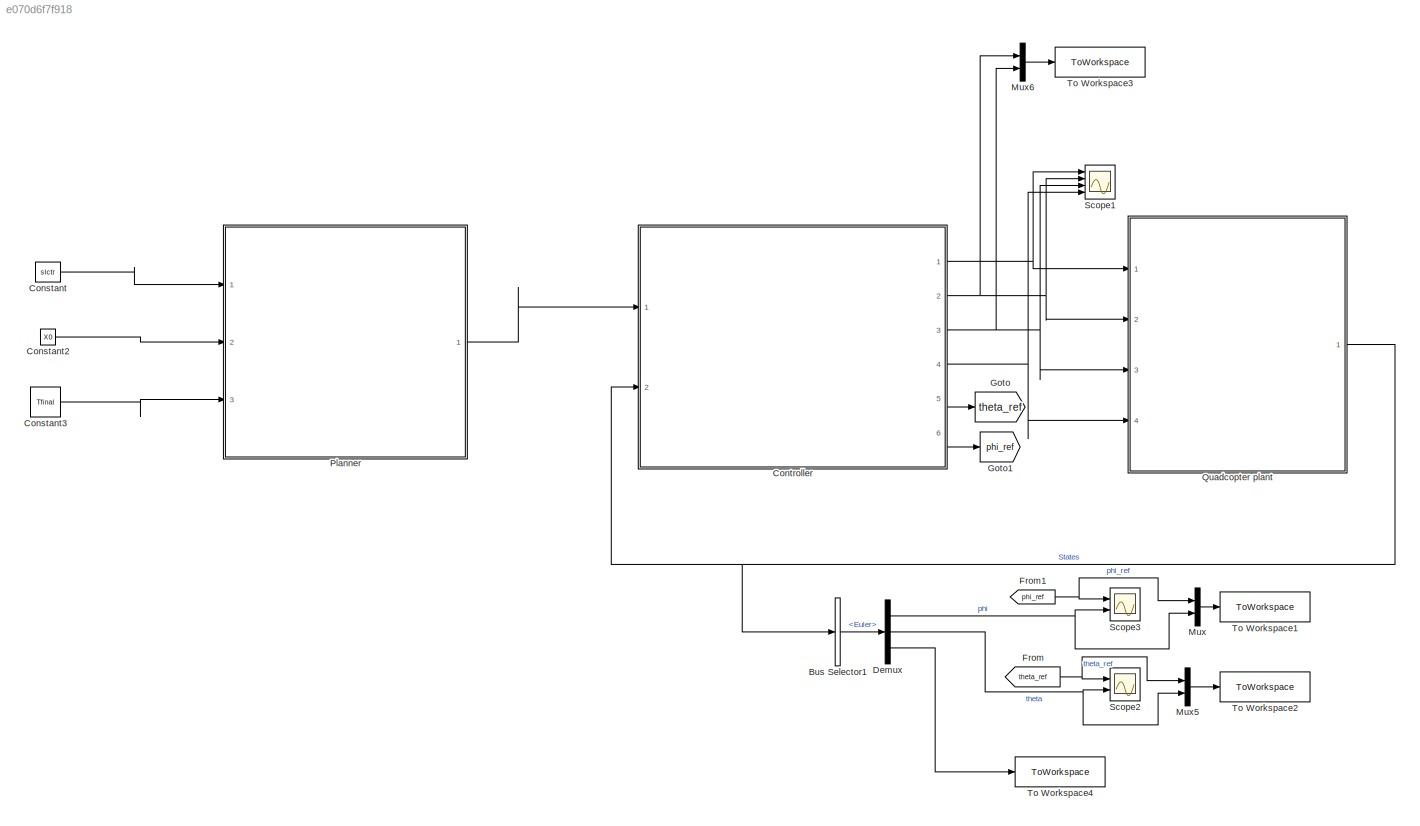
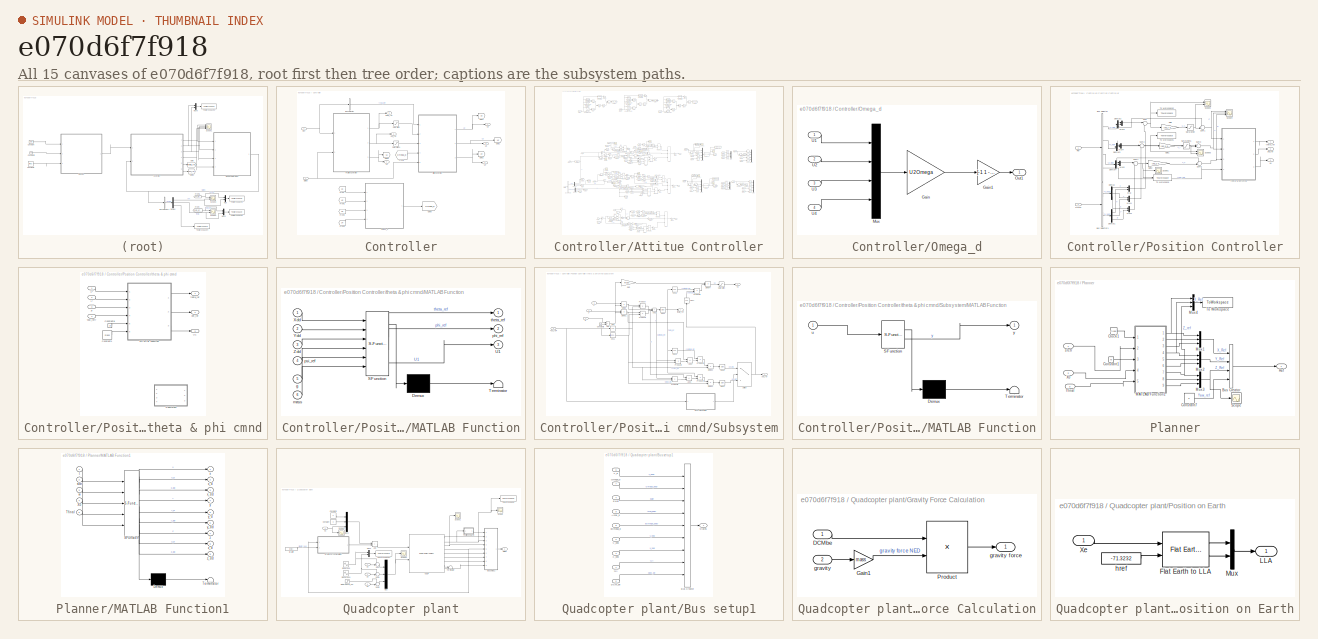
[diagram: thumbnail index - all 15 canvases of the model, root first then tree order]
MODEL slx_e070d6f7f918
KIND model
CONFIG AbsTol = auto
CONFIG EnableMultiTasking = off
CONFIG FixedStep = 0.005
CONFIG MaxStep = auto
CONFIG MinStep = auto
CONFIG RelTol = 1e-3
CONFIG SampleTimeConstraint = Unconstrained
CONFIG SolverName = FixedStepAuto
CONFIG StartTime = 0.0
CONFIG StopTime = 10
BLOCK [BusSelector] Bus Selector1
  OutputSignals = Euler
  Ports = [1, 1]
BLOCK [Constant] Constant
  Value = slctr
BLOCK [Constant] Constant2
  Value = X0
BLOCK [Constant] Constant3
  Value = Tfinal
BLOCK [SubSystem] Controller
  Ports = [2, 6]
  RequestExecContextInheritance = off
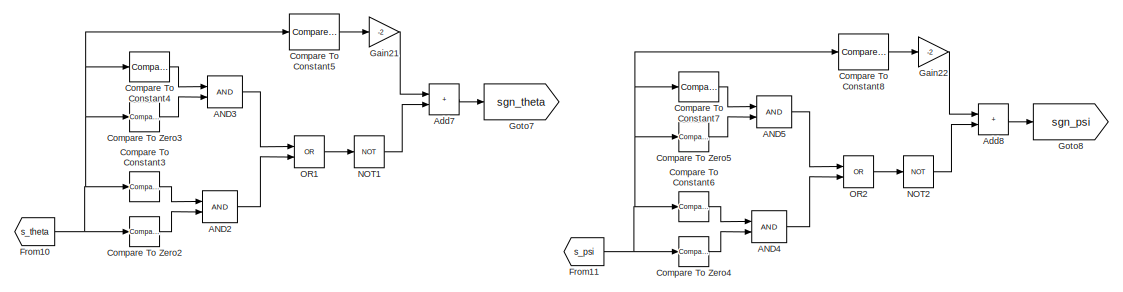
[diagram: Controller/Attitue Controller - part 1/6, top center region]
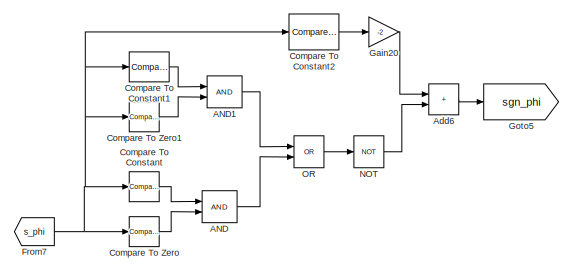
[diagram: Controller/Attitue Controller - part 2/6, top left region]
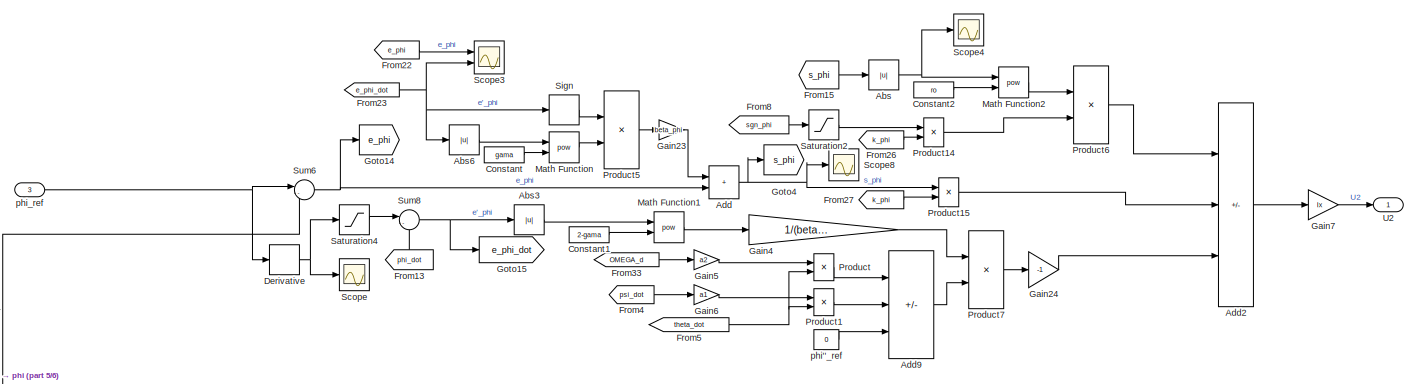
[diagram: Controller/Attitue Controller - part 3/6, central region]
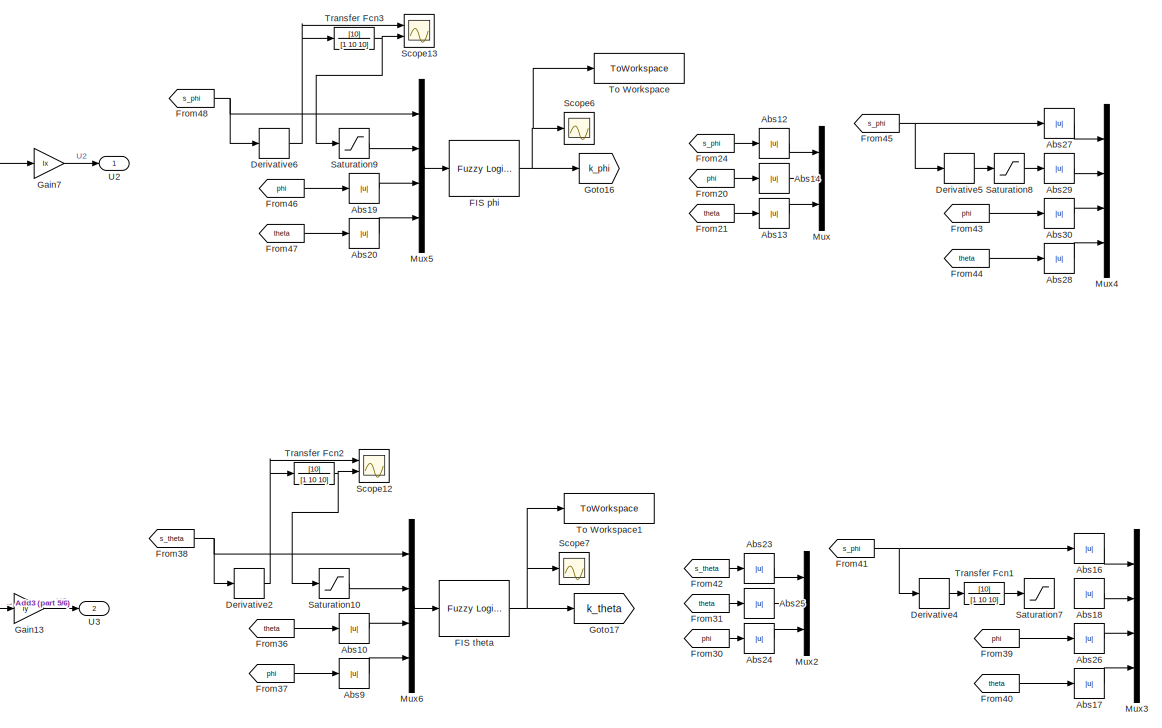
[diagram: Controller/Attitue Controller - part 4/6, middle right region]
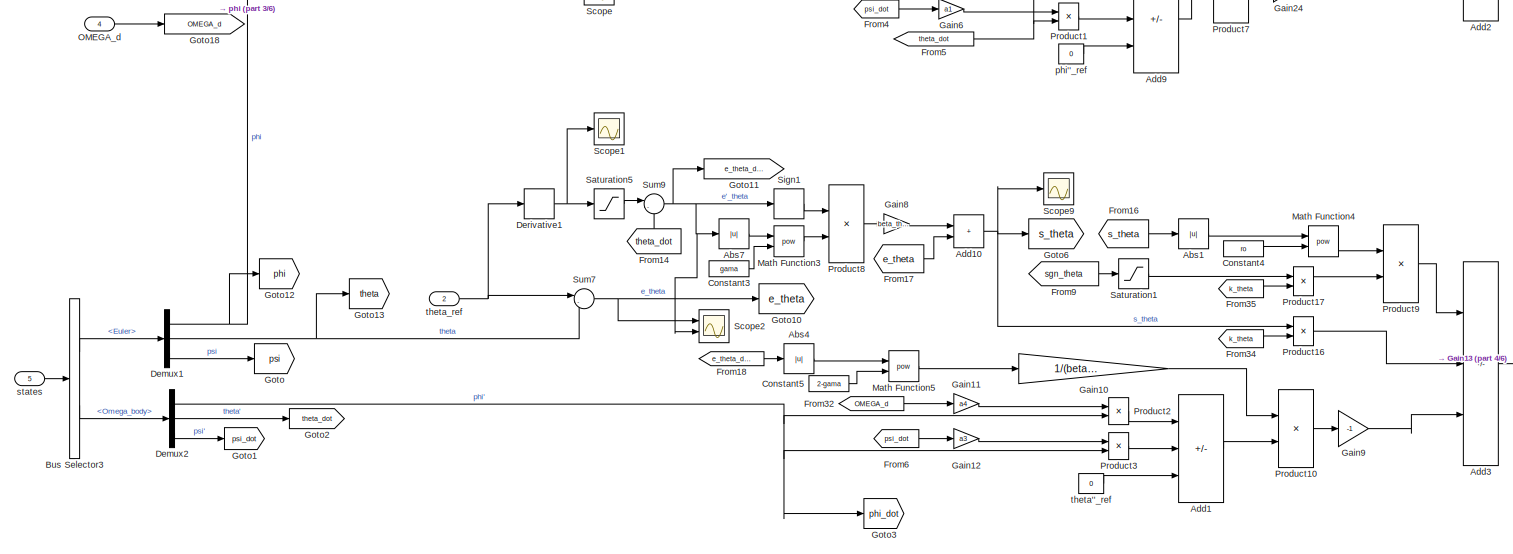
[diagram: Controller/Attitue Controller - part 5/6, middle left region]
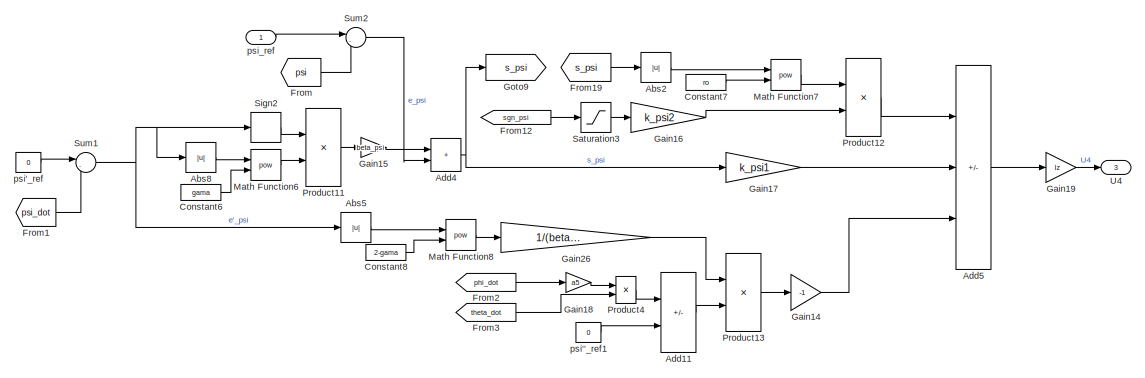
[diagram: Controller/Attitue Controller - part 6/6, bottom center region]
BLOCK [SubSystem] Controller/Attitue Controller
  Ports = [5, 3]
  RequestExecContextInheritance = off
BLOCK [Logic] Controller/Attitue Controller/AND
  AllPortsSameDT = off
  IconShape = distinctive
  OutDataTypeStr = boolean
  Ports = [2, 1]
BLOCK [Logic] Controller/Attitue Controller/AND1
  AllPortsSameDT = off
  IconShape = distinctive
  OutDataTypeStr = boolean
  Ports = [2, 1]
BLOCK [Logic] Controller/Attitue Controller/AND2
  AllPortsSameDT = off
  IconShape = distinctive
  OutDataTypeStr = boolean
  Ports = [2, 1]
BLOCK [Logic] Controller/Attitue Controller/AND3
  AllPortsSameDT = off
  IconShape = distinctive
  OutDataTypeStr = boolean
  Ports = [2, 1]
BLOCK [Logic] Controller/Attitue Controller/AND4
  AllPortsSameDT = off
  IconShape = distinctive
  OutDataTypeStr = boolean
  Ports = [2, 1]
BLOCK [Logic] Controller/Attitue Controller/AND5
  AllPortsSameDT = off
  IconShape = distinctive
  OutDataTypeStr = boolean
  Ports = [2, 1]
BLOCK [Abs] Controller/Attitue Controller/Abs
  SaturateOnIntegerOverflow = off
BLOCK [Abs] Controller/Attitue Controller/Abs1
  SaturateOnIntegerOverflow = off
BLOCK [Abs] Controller/Attitue Controller/Abs10
  SaturateOnIntegerOverflow = off
BLOCK [Abs] Controller/Attitue Controller/Abs12
  SaturateOnIntegerOverflow = off
BLOCK [Abs] Controller/Attitue Controller/Abs13
  SaturateOnIntegerOverflow = off
BLOCK [Abs] Controller/Attitue Controller/Abs14
  SaturateOnIntegerOverflow = off
BLOCK [Abs] Controller/Attitue Controller/Abs16
  SaturateOnIntegerOverflow = off
BLOCK [Abs] Controller/Attitue Controller/Abs17
  SaturateOnIntegerOverflow = off
BLOCK [Abs] Controller/Attitue Controller/Abs18
  SaturateOnIntegerOverflow = off
BLOCK [Abs] Controller/Attitue Controller/Abs19
  SaturateOnIntegerOverflow = off
BLOCK [Abs] Controller/Attitue Controller/Abs2
  SaturateOnIntegerOverflow = off
BLOCK [Abs] Controller/Attitue Controller/Abs20
  SaturateOnIntegerOverflow = off
BLOCK [Abs] Controller/Attitue Controller/Abs23
  SaturateOnIntegerOverflow = off
BLOCK [Abs] Controller/Attitue Controller/Abs24
  SaturateOnIntegerOverflow = off
BLOCK [Abs] Controller/Attitue Controller/Abs25
  SaturateOnIntegerOverflow = off
BLOCK [Abs] Controller/Attitue Controller/Abs26
  SaturateOnIntegerOverflow = off
BLOCK [Abs] Controller/Attitue Controller/Abs27
  SaturateOnIntegerOverflow = off
BLOCK [Abs] Controller/Attitue Controller/Abs28
  SaturateOnIntegerOverflow = off
BLOCK [Abs] Controller/Attitue Controller/Abs29
  SaturateOnIntegerOverflow = off
BLOCK [Abs] Controller/Attitue Controller/Abs3
  SaturateOnIntegerOverflow = off
BLOCK [Abs] Controller/Attitue Controller/Abs30
  SaturateOnIntegerOverflow = off
BLOCK [Abs] Controller/Attitue Controller/Abs4
  SaturateOnIntegerOverflow = off
BLOCK [Abs] Controller/Attitue Controller/Abs5
  SaturateOnIntegerOverflow = off
BLOCK [Abs] Controller/Attitue Controller/Abs6
  SaturateOnIntegerOverflow = off
BLOCK [Abs] Controller/Attitue Controller/Abs7
  SaturateOnIntegerOverflow = off
BLOCK [Abs] Controller/Attitue Controller/Abs8
  SaturateOnIntegerOverflow = off
BLOCK [Abs] Controller/Attitue Controller/Abs9
  SaturateOnIntegerOverflow = off
BLOCK [Sum] Controller/Attitue Controller/Add
  IconShape = rectangular
  Ports = [2, 1]
BLOCK [Sum] Controller/Attitue Controller/Add1
  IconShape = rectangular
  Inputs = --+
  Ports = [3, 1]
BLOCK [Sum] Controller/Attitue Controller/Add10
  IconShape = rectangular
  Ports = [2, 1]
BLOCK [Sum] Controller/Attitue Controller/Add11
  IconShape = rectangular
  Inputs = -+
  Ports = [2, 1]
BLOCK [Sum] Controller/Attitue Controller/Add2
  IconShape = rectangular
  Inputs = --+
  Ports = [3, 1]
BLOCK [Sum] Controller/Attitue Controller/Add3
  IconShape = rectangular
  Inputs = --+
  Ports = [3, 1]
BLOCK [Sum] Controller/Attitue Controller/Add4
  IconShape = rectangular
  Ports = [2, 1]
BLOCK [Sum] Controller/Attitue Controller/Add5
  IconShape = rectangular
  Inputs = --+
  Ports = [3, 1]
BLOCK [Sum] Controller/Attitue Controller/Add6
  IconShape = rectangular
  Ports = [2, 1]
BLOCK [Sum] Controller/Attitue Controller/Add7
  IconShape = rectangular
  Ports = [2, 1]
BLOCK [Sum] Controller/Attitue Controller/Add8
  IconShape = rectangular
  Ports = [2, 1]
BLOCK [Sum] Controller/Attitue Controller/Add9
  IconShape = rectangular
  Inputs = --+
  Ports = [3, 1]
BLOCK [BusSelector] Controller/Attitue Controller/Bus Selector3
  OutputSignals = Euler,Omega_body
  Ports = [1, 2]
BLOCK [Reference] Controller/Attitue Controller/Compare To Constant  REF=simulink/Logic and Bit
Operations/Compare
To Constant
  Ports = [1, 1]
  SourceBlock = simulink/Logic and Bit\nOperations/Compare\nTo Constant
  SourceProductBaseCode = SL
  SourceType = Compare To Constant
BLOCK [Reference] Controller/Attitue Controller/Compare To Constant1  REF=simulink/Logic and Bit
Operations/Compare
To Constant
  Ports = [1, 1]
  SourceBlock = simulink/Logic and Bit\nOperations/Compare\nTo Constant
  SourceProductBaseCode = SL
  SourceType = Compare To Constant
BLOCK [Reference] Controller/Attitue Controller/Compare To Constant2  REF=simulink/Logic and Bit
Operations/Compare
To Constant
  Ports = [1, 1]
  SourceBlock = simulink/Logic and Bit\nOperations/Compare\nTo Constant
  SourceProductBaseCode = SL
  SourceType = Compare To Constant
BLOCK [Reference] Controller/Attitue Controller/Compare To Constant3  REF=simulink/Logic and Bit
Operations/Compare
To Constant
  Ports = [1, 1]
  SourceBlock = simulink/Logic and Bit\nOperations/Compare\nTo Constant
  SourceProductBaseCode = SL
  SourceType = Compare To Constant
BLOCK [Reference] Controller/Attitue Controller/Compare To Constant4  REF=simulink/Logic and Bit
Operations/Compare
To Constant
  Ports = [1, 1]
  SourceBlock = simulink/Logic and Bit\nOperations/Compare\nTo Constant
  SourceProductBaseCode = SL
  SourceType = Compare To Constant
BLOCK [Reference] Controller/Attitue Controller/Compare To Constant5  REF=simulink/Logic and Bit
Operations/Compare
To Constant
  Ports = [1, 1]
  SourceBlock = simulink/Logic and Bit\nOperations/Compare\nTo Constant
  SourceProductBaseCode = SL
  SourceType = Compare To Constant
BLOCK [Reference] Controller/Attitue Controller/Compare To Constant6  REF=simulink/Logic and Bit
Operations/Compare
To Constant
  Ports = [1, 1]
  SourceBlock = simulink/Logic and Bit\nOperations/Compare\nTo Constant
  SourceProductBaseCode = SL
  SourceType = Compare To Constant
BLOCK [Reference] Controller/Attitue Controller/Compare To Constant7  REF=simulink/Logic and Bit
Operations/Compare
To Constant
  Ports = [1, 1]
  SourceBlock = simulink/Logic and Bit\nOperations/Compare\nTo Constant
  SourceProductBaseCode = SL
  SourceType = Compare To Constant
BLOCK [Reference] Controller/Attitue Controller/Compare To Constant8  REF=simulink/Logic and Bit
Operations/Compare
To Constant
  Ports = [1, 1]
  SourceBlock = simulink/Logic and Bit\nOperations/Compare\nTo Constant
  SourceProductBaseCode = SL
  SourceType = Compare To Constant
BLOCK [Reference] Controller/Attitue Controller/Compare To Zero  REF=simulink/Logic and Bit
Operations/Compare
To Zero
  Ports = [1, 1]
  SourceBlock = simulink/Logic and Bit\nOperations/Compare\nTo Zero
  SourceProductBaseCode = SL
  SourceType = Compare To Zero
BLOCK [Reference] Controller/Attitue Controller/Compare To Zero1  REF=simulink/Logic and Bit
Operations/Compare
To Zero
  Ports = [1, 1]
  SourceBlock = simulink/Logic and Bit\nOperations/Compare\nTo Zero
  SourceProductBaseCode = SL
  SourceType = Compare To Zero
BLOCK [Reference] Controller/Attitue Controller/Compare To Zero2  REF=simulink/Logic and Bit
Operations/Compare
To Zero
  Ports = [1, 1]
  SourceBlock = simulink/Logic and Bit\nOperations/Compare\nTo Zero
  SourceProductBaseCode = SL
  SourceType = Compare To Zero
BLOCK [Reference] Controller/Attitue Controller/Compare To Zero3  REF=simulink/Logic and Bit
Operations/Compare
To Zero
  Ports = [1, 1]
  SourceBlock = simulink/Logic and Bit\nOperations/Compare\nTo Zero
  SourceProductBaseCode = SL
  SourceType = Compare To Zero
BLOCK [Reference] Controller/Attitue Controller/Compare To Zero4  REF=simulink/Logic and Bit
Operations/Compare
To Zero
  Ports = [1, 1]
  SourceBlock = simulink/Logic and Bit\nOperations/Compare\nTo Zero
  SourceProductBaseCode = SL
  SourceType = Compare To Zero
BLOCK [Reference] Controller/Attitue Controller/Compare To Zero5  REF=simulink/Logic and Bit
Operations/Compare
To Zero
  Ports = [1, 1]
  SourceBlock = simulink/Logic and Bit\nOperations/Compare\nTo Zero
  SourceProductBaseCode = SL
  SourceType = Compare To Zero
BLOCK [Constant] Controller/Attitue Controller/Constant
  Value = gama
BLOCK [Constant] Controller/Attitue Controller/Constant1
  Value = 2-gama
BLOCK [Constant] Controller/Attitue Controller/Constant2
  Value = ro
BLOCK [Constant] Controller/Attitue Controller/Constant3
  Value = gama
BLOCK [Constant] Controller/Attitue Controller/Constant4
  Value = ro
BLOCK [Constant] Controller/Attitue Controller/Constant5
  Value = 2-gama
BLOCK [Constant] Controller/Attitue Controller/Constant6
  Value = gama
BLOCK [Constant] Controller/Attitue Controller/Constant7
  Value = ro
BLOCK [Constant] Controller/Attitue Controller/Constant8
  Value = 2-gama
BLOCK [Demux] Controller/Attitue Controller/Demux1
  Outputs = 3
  Ports = [1, 3]
BLOCK [Demux] Controller/Attitue Controller/Demux2
  Outputs = 3
  Ports = [1, 3]
BLOCK [Derivative] Controller/Attitue Controller/Derivative
BLOCK [Derivative] Controller/Attitue Controller/Derivative1
BLOCK [Derivative] Controller/Attitue Controller/Derivative2
BLOCK [Derivative] Controller/Attitue Controller/Derivative4
BLOCK [Derivative] Controller/Attitue Controller/Derivative5
BLOCK [Derivative] Controller/Attitue Controller/Derivative6
BLOCK [Reference] Controller/Attitue Controller/FIS phi  REF=fuzblock/Fuzzy Logic   (lib defined in mdl_858b3b3e7478)
Controller
  Ports = [1, 1]
  SourceBlock = fuzblock/Fuzzy Logic \nController
  SourceProductBaseCode = FL
  SourceType = Fuzzy Inference System
BLOCK [Reference] Controller/Attitue Controller/FIS theta  REF=fuzblock/Fuzzy Logic   (lib defined in mdl_858b3b3e7478)
Controller
  Ports = [1, 1]
  SourceBlock = fuzblock/Fuzzy Logic \nController
  SourceProductBaseCode = FL
  SourceType = Fuzzy Inference System
BLOCK [From] Controller/Attitue Controller/From
  GotoTag = psi
BLOCK [From] Controller/Attitue Controller/From1
  GotoTag = psi_dot
BLOCK [From] Controller/Attitue Controller/From10
  GotoTag = s_theta
BLOCK [From] Controller/Attitue Controller/From11
  GotoTag = s_psi
BLOCK [From] Controller/Attitue Controller/From12
  GotoTag = sgn_psi
BLOCK [From] Controller/Attitue Controller/From13
  GotoTag = phi_dot
  NameLocation = right
BLOCK [From] Controller/Attitue Controller/From14
  GotoTag = theta_dot
  NameLocation = right
BLOCK [From] Controller/Attitue Controller/From15
  GotoTag = s_phi
BLOCK [From] Controller/Attitue Controller/From16
  GotoTag = s_theta
BLOCK [From] Controller/Attitue Controller/From17
  GotoTag = e_theta
BLOCK [From] Controller/Attitue Controller/From18
  GotoTag = e_theta_dot
BLOCK [From] Controller/Attitue Controller/From19
  GotoTag = s_psi
BLOCK [From] Controller/Attitue Controller/From2
  GotoTag = phi_dot
BLOCK [From] Controller/Attitue Controller/From20
  GotoTag = phi
BLOCK [From] Controller/Attitue Controller/From21
  GotoTag = theta
BLOCK [From] Controller/Attitue Controller/From22
  GotoTag = e_phi
BLOCK [From] Controller/Attitue Controller/From23
  GotoTag = e_phi_dot
BLOCK [From] Controller/Attitue Controller/From24
  GotoTag = s_phi
BLOCK [From] Controller/Attitue Controller/From26
  GotoTag = k_phi
BLOCK [From] Controller/Attitue Controller/From27
  GotoTag = k_phi
BLOCK [From] Controller/Attitue Controller/From3
  GotoTag = theta_dot
BLOCK [From] Controller/Attitue Controller/From30
  GotoTag = phi
BLOCK [From] Controller/Attitue Controller/From31
  GotoTag = theta
BLOCK [From] Controller/Attitue Controller/From32
  GotoTag = OMEGA_d
BLOCK [From] Controller/Attitue Controller/From33
  GotoTag = OMEGA_d
BLOCK [From] Controller/Attitue Controller/From34
  GotoTag = k_theta
BLOCK [From] Controller/Attitue Controller/From35
  GotoTag = k_theta
BLOCK [From] Controller/Attitue Controller/From36
  GotoTag = theta
BLOCK [From] Controller/Attitue Controller/From37
  GotoTag = phi
BLOCK [From] Controller/Attitue Controller/From38
  GotoTag = s_theta
BLOCK [From] Controller/Attitue Controller/From39
  GotoTag = phi
BLOCK [From] Controller/Attitue Controller/From4
  GotoTag = psi_dot
BLOCK [From] Controller/Attitue Controller/From40
  GotoTag = theta
BLOCK [From] Controller/Attitue Controller/From41
  GotoTag = s_phi
BLOCK [From] Controller/Attitue Controller/From42
  GotoTag = s_theta
BLOCK [From] Controller/Attitue Controller/From43
  GotoTag = phi
BLOCK [From] Controller/Attitue Controller/From44
  GotoTag = theta
BLOCK [From] Controller/Attitue Controller/From45
  GotoTag = s_phi
BLOCK [From] Controller/Attitue Controller/From46
  GotoTag = phi
BLOCK [From] Controller/Attitue Controller/From47
  GotoTag = theta
BLOCK [From] Controller/Attitue Controller/From48
  GotoTag = s_phi
BLOCK [From] Controller/Attitue Controller/From5
  GotoTag = theta_dot
BLOCK [From] Controller/Attitue Controller/From6
  GotoTag = psi_dot
BLOCK [From] Controller/Attitue Controller/From7
  GotoTag = s_phi
BLOCK [From] Controller/Attitue Controller/From8
  GotoTag = sgn_phi
BLOCK [From] Controller/Attitue Controller/From9
  GotoTag = sgn_theta
BLOCK [Gain] Controller/Attitue Controller/Gain10
  Gain = 1/(beta_theta*gama)
BLOCK [Gain] Controller/Attitue Controller/Gain11
  Gain = a4
BLOCK [Gain] Controller/Attitue Controller/Gain12
  Gain = a3
BLOCK [Gain] Controller/Attitue Controller/Gain13
  Gain = Iy
BLOCK [Gain] Controller/Attitue Controller/Gain14
  Gain = -1
BLOCK [Gain] Controller/Attitue Controller/Gain15
  Gain = beta_psi
BLOCK [Gain] Controller/Attitue Controller/Gain16
  Gain = k_psi2
BLOCK [Gain] Controller/Attitue Controller/Gain17
  Gain = k_psi1
BLOCK [Gain] Controller/Attitue Controller/Gain18
  Gain = a5
BLOCK [Gain] Controller/Attitue Controller/Gain19
  Gain = Iz
BLOCK [Gain] Controller/Attitue Controller/Gain20
  Gain = -2
BLOCK [Gain] Controller/Attitue Controller/Gain21
  Gain = -2
BLOCK [Gain] Controller/Attitue Controller/Gain22
  Gain = -2
BLOCK [Gain] Controller/Attitue Controller/Gain23
  Gain = beta_phi
BLOCK [Gain] Controller/Attitue Controller/Gain24
  Gain = -1
BLOCK [Gain] Controller/Attitue Controller/Gain26
  Gain = 1/(beta_psi*gama)
BLOCK [Gain] Controller/Attitue Controller/Gain4
  Gain = 1/(beta_phi*gama)
BLOCK [Gain] Controller/Attitue Controller/Gain5
  Gain = a2
BLOCK [Gain] Controller/Attitue Controller/Gain6
  Gain = a1
BLOCK [Gain] Controller/Attitue Controller/Gain7
  Gain = Ix
BLOCK [Gain] Controller/Attitue Controller/Gain8
  Gain = beta_theta
BLOCK [Gain] Controller/Attitue Controller/Gain9
  Gain = -1
BLOCK [Goto] Controller/Attitue Controller/Goto
  GotoTag = psi
BLOCK [Goto] Controller/Attitue Controller/Goto1
  GotoTag = psi_dot
BLOCK [Goto] Controller/Attitue Controller/Goto10
  GotoTag = e_theta
BLOCK [Goto] Controller/Attitue Controller/Goto11
  GotoTag = e_theta_dot
BLOCK [Goto] Controller/Attitue Controller/Goto12
  GotoTag = phi
BLOCK [Goto] Controller/Attitue Controller/Goto13
  GotoTag = theta
BLOCK [Goto] Controller/Attitue Controller/Goto14
  GotoTag = e_phi
BLOCK [Goto] Controller/Attitue Controller/Goto15
  GotoTag = e_phi_dot
BLOCK [Goto] Controller/Attitue Controller/Goto16
  GotoTag = k_phi
BLOCK [Goto] Controller/Attitue Controller/Goto17
  GotoTag = k_theta
BLOCK [Goto] Controller/Attitue Controller/Goto18
  GotoTag = OMEGA_d
BLOCK [Goto] Controller/Attitue Controller/Goto2
  GotoTag = theta_dot
BLOCK [Goto] Controller/Attitue Controller/Goto3
  GotoTag = phi_dot
BLOCK [Goto] Controller/Attitue Controller/Goto4
  GotoTag = s_phi
BLOCK [Goto] Controller/Attitue Controller/Goto5
  GotoTag = sgn_phi
BLOCK [Goto] Controller/Attitue Controller/Goto6
  GotoTag = s_theta
BLOCK [Goto] Controller/Attitue Controller/Goto7
  GotoTag = sgn_theta
BLOCK [Goto] Controller/Attitue Controller/Goto8
  GotoTag = sgn_psi
BLOCK [Goto] Controller/Attitue Controller/Goto9
  GotoTag = s_psi
BLOCK [Math] Controller/Attitue Controller/Math Function
  Operator = pow
  Ports = [2, 1]
BLOCK [Math] Controller/Attitue Controller/Math Function1
  Operator = pow
  Ports = [2, 1]
BLOCK [Math] Controller/Attitue Controller/Math Function2
  Operator = pow
  Ports = [2, 1]
BLOCK [Math] Controller/Attitue Controller/Math Function3
  Operator = pow
  Ports = [2, 1]
BLOCK [Math] Controller/Attitue Controller/Math Function4
  Operator = pow
  Ports = [2, 1]
BLOCK [Math] Controller/Attitue Controller/Math Function5
  Operator = pow
  Ports = [2, 1]
BLOCK [Math] Controller/Attitue Controller/Math Function6
  Operator = pow
  Ports = [2, 1]
BLOCK [Math] Controller/Attitue Controller/Math Function7
  Operator = pow
  Ports = [2, 1]
BLOCK [Math] Controller/Attitue Controller/Math Function8
  Operator = pow
  Ports = [2, 1]
BLOCK [Mux] Controller/Attitue Controller/Mux
  DisplayOption = bar
  Inputs = 3
  Ports = [3, 1]
BLOCK [Mux] Controller/Attitue Controller/Mux2
  DisplayOption = bar
  Inputs = 3
  Ports = [3, 1]
BLOCK [Mux] Controller/Attitue Controller/Mux3
  DisplayOption = bar
  Ports = [4, 1]
BLOCK [Mux] Controller/Attitue Controller/Mux4
  DisplayOption = bar
  Ports = [4, 1]
BLOCK [Mux] Controller/Attitue Controller/Mux5
  DisplayOption = bar
  Ports = [4, 1]
BLOCK [Mux] Controller/Attitue Controller/Mux6
  DisplayOption = bar
  Ports = [4, 1]
BLOCK [Logic] Controller/Attitue Controller/NOT
  AllPortsSameDT = off
  IconShape = distinctive
  Operator = NOT
  OutDataTypeStr = boolean
  Ports = [1, 1]
BLOCK [Logic] Controller/Attitue Controller/NOT1
  AllPortsSameDT = off
  IconShape = distinctive
  Operator = NOT
  OutDataTypeStr = boolean
  Ports = [1, 1]
BLOCK [Logic] Controller/Attitue Controller/NOT2
  AllPortsSameDT = off
  IconShape = distinctive
  Operator = NOT
  OutDataTypeStr = boolean
  Ports = [1, 1]
BLOCK [Inport] Controller/Attitue Controller/OMEGA_d
  Port = 4
BLOCK [Logic] Controller/Attitue Controller/OR
  AllPortsSameDT = off
  IconShape = distinctive
  Operator = OR
  OutDataTypeStr = boolean
  Ports = [2, 1]
BLOCK [Logic] Controller/Attitue Controller/OR1
  AllPortsSameDT = off
  IconShape = distinctive
  Operator = OR
  OutDataTypeStr = boolean
  Ports = [2, 1]
BLOCK [Logic] Controller/Attitue Controller/OR2
  AllPortsSameDT = off
  IconShape = distinctive
  Operator = OR
  OutDataTypeStr = boolean
  Ports = [2, 1]
BLOCK [Product] Controller/Attitue Controller/Product
  Ports = [2, 1]
BLOCK [Product] Controller/Attitue Controller/Product1
  Ports = [2, 1]
BLOCK [Product] Controller/Attitue Controller/Product10
  Ports = [2, 1]
BLOCK [Product] Controller/Attitue Controller/Product11
  Ports = [2, 1]
BLOCK [Product] Controller/Attitue Controller/Product12
  Ports = [2, 1]
BLOCK [Product] Controller/Attitue Controller/Product13
  Ports = [2, 1]
BLOCK [Product] Controller/Attitue Controller/Product14
  Ports = [2, 1]
BLOCK [Product] Controller/Attitue Controller/Product15
  Ports = [2, 1]
BLOCK [Product] Controller/Attitue Controller/Product16
  Ports = [2, 1]
BLOCK [Product] Controller/Attitue Controller/Product17
  Ports = [2, 1]
BLOCK [Product] Controller/Attitue Controller/Product2
  Ports = [2, 1]
BLOCK [Product] Controller/Attitue Controller/Product3
  Ports = [2, 1]
BLOCK [Product] Controller/Attitue Controller/Product4
  Ports = [2, 1]
BLOCK [Product] Controller/Attitue Controller/Product5
  Ports = [2, 1]
BLOCK [Product] Controller/Attitue Controller/Product6
  Ports = [2, 1]
BLOCK [Product] Controller/Attitue Controller/Product7
  Ports = [2, 1]
BLOCK [Product] Controller/Attitue Controller/Product8
  Ports = [2, 1]
BLOCK [Product] Controller/Attitue Controller/Product9
  Ports = [2, 1]
BLOCK [Saturate] Controller/Attitue Controller/Saturation1
  LowerLimit = -1e-2
  UpperLimit = 1e-2
BLOCK [Saturate] Controller/Attitue Controller/Saturation10
  LowerLimit = -5
  UpperLimit = 5
BLOCK [Saturate] Controller/Attitue Controller/Saturation2
  LowerLimit = -1e-2
  UpperLimit = 1e-2
BLOCK [Saturate] Controller/Attitue Controller/Saturation3
  LowerLimit = -1e-2
  UpperLimit = 1e-2
BLOCK [Saturate] Controller/Attitue Controller/Saturation4
  LowerLimit = -5
  UpperLimit = 5
BLOCK [Saturate] Controller/Attitue Controller/Saturation5
  LowerLimit = -5
  UpperLimit = 5
BLOCK [Saturate] Controller/Attitue Controller/Saturation7
  LowerLimit = -5
  UpperLimit = 5
BLOCK [Saturate] Controller/Attitue Controller/Saturation8
  LowerLimit = -5
  UpperLimit = 5
BLOCK [Saturate] Controller/Attitue Controller/Saturation9
  LowerLimit = -5
  UpperLimit = 5
BLOCK [Scope] Controller/Attitue Controller/Scope
  Floating = off
  NumInputPorts = 1
  Ports = [1]
  ScopeSpecificationString = Simulink.scopes.TimeScopeBlockCfg('CurrentConfiguration', extmgr.ConfigurationSet(extmgr.Configuration('Core','General UI',true),extmgr.Configuration('Core','Source UI',true),extmgr.Configuration('Sources','WiredSimulink',true,'DataLoggingVariableName','ScopeData1'),extmgr.Configuration('Visuals','Time Domain',true,'SerializedDisplays',{struct('MinYLimReal','-3.5465','MaxYLimReal','2.05103','YLabe...<+1365ch>
BLOCK [Scope] Controller/Attitue Controller/Scope1
  Floating = off
  NumInputPorts = 1
  Ports = [1]
  ScopeSpecificationString = Simulink.scopes.TimeScopeBlockCfg('CurrentConfiguration', extmgr.ConfigurationSet(extmgr.Configuration('Core','General UI',true),extmgr.Configuration('Core','Source UI',true),extmgr.Configuration('Sources','WiredSimulink',true,'DataLoggingVariableName','ScopeData3'),extmgr.Configuration('Visuals','Time Domain',true,'SerializedDisplays',{struct('MinYLimReal','-1.87666','MaxYLimReal','3.76434','YLab...<+1370ch>
BLOCK [Scope] Controller/Attitue Controller/Scope12
  Floating = off
  NumInputPorts = 2
  Ports = [2]
  ScopeSpecificationString = Simulink.scopes.TimeScopeBlockCfg('CurrentConfiguration', extmgr.ConfigurationSet(extmgr.Configuration('Core','General UI',true),extmgr.Configuration('Core','Source UI',true),extmgr.Configuration('Sources','WiredSimulink',true,'DataLoggingVariableName','ScopeData1'),extmgr.Configuration('Visuals','Time Domain',true,'SerializedDisplays',{struct('MinYLimReal','-1.41707','MaxYLimReal','1.05628','YLab...<+1438ch>
BLOCK [Scope] Controller/Attitue Controller/Scope13
  Floating = off
  NumInputPorts = 2
  Ports = [2]
  ScopeSpecificationString = Simulink.scopes.TimeScopeBlockCfg('CurrentConfiguration', extmgr.ConfigurationSet(extmgr.Configuration('Core','General UI',true),extmgr.Configuration('Core','Source UI',true),extmgr.Configuration('Sources','WiredSimulink',true,'DataLoggingVariableName','ScopeData2'),extmgr.Configuration('Visuals','Time Domain',true,'SerializedDisplays',{struct('MinYLimReal','-0.35867','MaxYLimReal','0.29003','YLab...<+1440ch>
BLOCK [Scope] Controller/Attitue Controller/Scope2
  Floating = off
  NumInputPorts = 2
  Ports = [2]
  ScopeSpecificationString = Simulink.scopes.TimeScopeBlockCfg('CurrentConfiguration', extmgr.ConfigurationSet(extmgr.Configuration('Core','General UI',true),extmgr.Configuration('Core','Source UI',true),extmgr.Configuration('Sources','WiredSimulink',true,'DataLoggingVariableName','ScopeData3'),extmgr.Configuration('Visuals','Time Domain',true,'SerializedDisplays',{struct('MinYLimReal','-1.13752','MaxYLimReal','2.32672','YLab...<+1430ch>
BLOCK [Scope] Controller/Attitue Controller/Scope3
  Floating = off
  NumInputPorts = 2
  Ports = [2]
  ScopeSpecificationString = Simulink.scopes.TimeScopeBlockCfg('CurrentConfiguration', extmgr.ConfigurationSet(extmgr.Configuration('Core','General UI',true),extmgr.Configuration('Core','Source UI',true),extmgr.Configuration('Sources','WiredSimulink',true,'DataLoggingVariableName','ScopeData4'),extmgr.Configuration('Visuals','Time Domain',true,'SerializedDisplays',{struct('MinYLimReal','-0.92651','MaxYLimReal','0.77112','YLab...<+1431ch>
BLOCK [Scope] Controller/Attitue Controller/Scope4
  Floating = off
  NumInputPorts = 1
  Ports = [1]
  ScopeSpecificationString = Simulink.scopes.TimeScopeBlockCfg('CurrentConfiguration', extmgr.ConfigurationSet(extmgr.Configuration('Core','General UI',true),extmgr.Configuration('Core','Source UI',true),extmgr.Configuration('Sources','WiredSimulink',true,'DataLoggingVariableName','ScopeData5'),extmgr.Configuration('Visuals','Time Domain',true),extmgr.Configuration('Tools','Plot Navigation',true),extmgr.Configuration('Tools',...<+40ch>
BLOCK [Scope] Controller/Attitue Controller/Scope6
  Floating = off
  NumInputPorts = 1
  Ports = [1]
  ScopeSpecificationString = Simulink.scopes.TimeScopeBlockCfg('CurrentConfiguration', extmgr.ConfigurationSet(extmgr.Configuration('Core','General UI',true),extmgr.Configuration('Core','Source UI',true),extmgr.Configuration('Sources','WiredSimulink',true,'DataLoggingVariableName','ScopeData1'),extmgr.Configuration('Visuals','Time Domain',true,'SerializedDisplays',{struct('MinYLimReal','10.04663','MaxYLimReal','61.6606','YLab...<+1399ch>
BLOCK [Scope] Controller/Attitue Controller/Scope7
  Floating = off
  NumInputPorts = 1
  Ports = [1]
  ScopeSpecificationString = Simulink.scopes.TimeScopeBlockCfg('CurrentConfiguration', extmgr.ConfigurationSet(extmgr.Configuration('Core','General UI',true),extmgr.Configuration('Core','Source UI',true),extmgr.Configuration('Sources','WiredSimulink',true,'DataLoggingVariableName','ScopeData2'),extmgr.Configuration('Visuals','Time Domain',true,'SerializedDisplays',{struct('MinYLimReal','-2.98909','MaxYLimReal','78.1099','YLab...<+1439ch>
BLOCK [Scope] Controller/Attitue Controller/Scope8
  Floating = off
  NumInputPorts = 1
  Ports = [1]
  ScopeSpecificationString = Simulink.scopes.TimeScopeBlockCfg('CurrentConfiguration', extmgr.ConfigurationSet(extmgr.Configuration('Core','General UI',true),extmgr.Configuration('Core','Source UI',true),extmgr.Configuration('Sources','WiredSimulink',true,'DataLoggingVariableName','ScopeData3'),extmgr.Configuration('Visuals','Time Domain',true,'SerializedDisplays',{struct('MinYLimReal','-0.44451','MaxYLimReal','0.72337','YLab...<+1415ch>
BLOCK [Scope] Controller/Attitue Controller/Scope9
  Floating = off
  NumInputPorts = 1
  Ports = [1]
  ScopeSpecificationString = Simulink.scopes.TimeScopeBlockCfg('CurrentConfiguration', extmgr.ConfigurationSet(extmgr.Configuration('Core','General UI',true),extmgr.Configuration('Core','Source UI',true),extmgr.Configuration('Sources','WiredSimulink',true,'DataLoggingVariableName','ScopeData4'),extmgr.Configuration('Visuals','Time Domain',true,'SerializedDisplays',{struct('MinYLimReal','-0.27163','MaxYLimReal','0.12798','YLab...<+1437ch>
BLOCK [Signum] Controller/Attitue Controller/Sign
BLOCK [Signum] Controller/Attitue Controller/Sign1
BLOCK [Signum] Controller/Attitue Controller/Sign2
BLOCK [Sum] Controller/Attitue Controller/Sum1
  Inputs = |-+
  Ports = [2, 1]
BLOCK [Sum] Controller/Attitue Controller/Sum2
  Inputs = |-+
  Ports = [2, 1]
BLOCK [Sum] Controller/Attitue Controller/Sum6
  Inputs = |-+
  Ports = [2, 1]
BLOCK [Sum] Controller/Attitue Controller/Sum7
  Inputs = |-+
  Ports = [2, 1]
BLOCK [Sum] Controller/Attitue Controller/Sum8
  Inputs = |-+
  Ports = [2, 1]
BLOCK [Sum] Controller/Attitue Controller/Sum9
  Inputs = |-+
  Ports = [2, 1]
BLOCK [ToWorkspace] Controller/Attitue Controller/To Workspace
  FixptAsFi = on
  MaxDataPoints = inf
  Ports = [1]
  SampleTime = -1
  SaveFormat = Timeseries
  VariableName = k_adptv_phi
BLOCK [ToWorkspace] Controller/Attitue Controller/To Workspace1
  FixptAsFi = on
  MaxDataPoints = inf
  Ports = [1]
  SampleTime = -1
  SaveFormat = Timeseries
  VariableName = k_adptv_theta
BLOCK [TransferFcn] Controller/Attitue Controller/Transfer Fcn1
  Denominator = [1 10 10]
  Numerator = [10]
BLOCK [TransferFcn] Controller/Attitue Controller/Transfer Fcn2
  Denominator = [1 10 10]
  Numerator = [10]
BLOCK [TransferFcn] Controller/Attitue Controller/Transfer Fcn3
  Denominator = [1 10 10]
  Numerator = [10]
BLOCK [Outport] Controller/Attitue Controller/U2
BLOCK [Outport] Controller/Attitue Controller/U3
  Port = 2
BLOCK [Outport] Controller/Attitue Controller/U4
  Port = 3
BLOCK [Constant] Controller/Attitue Controller/phi''_ref
  Value = 0
BLOCK [Inport] Controller/Attitue Controller/phi_ref
  Port = 3
BLOCK [Constant] Controller/Attitue Controller/psi''_ref1
  Value = 0
BLOCK [Constant] Controller/Attitue Controller/psi'_ref
  Value = 0
BLOCK [Inport] Controller/Attitue Controller/psi_ref
BLOCK [Inport] Controller/Attitue Controller/states
  Port = 5
BLOCK [Constant] Controller/Attitue Controller/theta''_ref
  Value = 0
BLOCK [Inport] Controller/Attitue Controller/theta_ref
  Port = 2
BLOCK [BusSelector] Controller/Bus Selector
  OutputSignals = Yaw_ref
  Ports = [1, 1]
BLOCK [From] Controller/From
  GotoTag = U1
BLOCK [From] Controller/From1
  GotoTag = U2
BLOCK [From] Controller/From2
  GotoTag = U3
BLOCK [From] Controller/From3
  GotoTag = U4
BLOCK [From] Controller/From4
  GotoTag = Omega_d
BLOCK [Goto] Controller/Goto1
  GotoTag = U3
BLOCK [Goto] Controller/Goto2
  GotoTag = U4
BLOCK [Goto] Controller/Goto3
  GotoTag = U1
BLOCK [Goto] Controller/Goto4
  GotoTag = U2
BLOCK [Goto] Controller/Goto5
  GotoTag = Omega_d
BLOCK [SubSystem] Controller/Omega_d
  Ports = [4, 1]
  RequestExecContextInheritance = off
BLOCK [Gain] Controller/Omega_d/Gain
  Gain = U2Omega
  Multiplication = Matrix(K*u)
BLOCK [Gain] Controller/Omega_d/Gain1
  Gain = [-1 1 -1 1]
  Multiplication = Matrix(K*u)
BLOCK [Mux] Controller/Omega_d/Mux
  DisplayOption = bar
  Ports = [4, 1]
BLOCK [Outport] Controller/Omega_d/Out1
BLOCK [Inport] Controller/Omega_d/U1
BLOCK [Inport] Controller/Omega_d/U2
  Port = 2
BLOCK [Inport] Controller/Omega_d/U3
  Port = 3
BLOCK [Inport] Controller/Omega_d/U4
  Port = 4
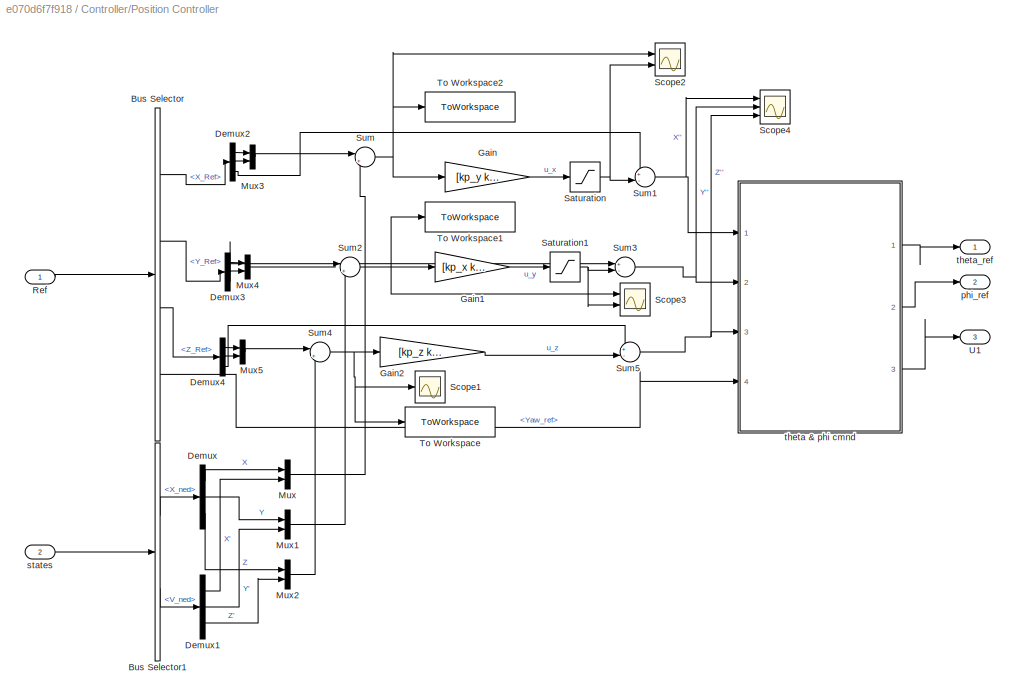
BLOCK [SubSystem] Controller/Position Controller
  Ports = [2, 3]
  RequestExecContextInheritance = off
BLOCK [BusSelector] Controller/Position Controller/Bus Selector
  OutputSignals = X_Ref,Y_Ref,Z_Ref,Yaw_ref
  Ports = [1, 4]
BLOCK [BusSelector] Controller/Position Controller/Bus Selector1
  OutputSignals = X_ned,V_ned
  Ports = [1, 2]
BLOCK [Demux] Controller/Position Controller/Demux
  Outputs = 3
  Ports = [1, 3]
BLOCK [Demux] Controller/Position Controller/Demux1
  Outputs = 3
  Ports = [1, 3]
BLOCK [Demux] Controller/Position Controller/Demux2
  Outputs = 3
  Ports = [1, 3]
BLOCK [Demux] Controller/Position Controller/Demux3
  Outputs = 3
  Ports = [1, 3]
BLOCK [Demux] Controller/Position Controller/Demux4
  Outputs = 3
  Ports = [1, 3]
BLOCK [Gain] Controller/Position Controller/Gain
  Gain = [kp_y kd_y]
  Multiplication = Matrix(K*u)
BLOCK [Gain] Controller/Position Controller/Gain1
  Gain = [kp_x kd_x]
  Multiplication = Matrix(K*u)
BLOCK [Gain] Controller/Position Controller/Gain2
  Gain = [kp_z kd_z]
  Multiplication = Matrix(K*u)
BLOCK [Mux] Controller/Position Controller/Mux
  DisplayOption = bar
  Inputs = 2
  Ports = [2, 1]
BLOCK [Mux] Controller/Position Controller/Mux1
  DisplayOption = bar
  Inputs = 2
  Ports = [2, 1]
BLOCK [Mux] Controller/Position Controller/Mux2
  DisplayOption = bar
  Inputs = 2
  Ports = [2, 1]
BLOCK [Mux] Controller/Position Controller/Mux3
  DisplayOption = bar
  Inputs = 2
  Ports = [2, 1]
BLOCK [Mux] Controller/Position Controller/Mux4
  DisplayOption = bar
  Inputs = 2
  Ports = [2, 1]
BLOCK [Mux] Controller/Position Controller/Mux5
  DisplayOption = bar
  Inputs = 2
  Ports = [2, 1]
BLOCK [Inport] Controller/Position Controller/Ref
BLOCK [Saturate] Controller/Position Controller/Saturation
  LowerLimit = -8
  UpperLimit = 8
BLOCK [Saturate] Controller/Position Controller/Saturation1
  LowerLimit = -8
  UpperLimit = 8
BLOCK [Scope] Controller/Position Controller/Scope1
  Floating = off
  NumInputPorts = 1
  Ports = [1]
  ScopeSpecificationString = Simulink.scopes.TimeScopeBlockCfg('CurrentConfiguration', extmgr.ConfigurationSet(extmgr.Configuration('Core','General UI',true),extmgr.Configuration('Core','Source UI',true),extmgr.Configuration('Sources','WiredSimulink',true,'DataLoggingVariableName','ScopeData1'),extmgr.Configuration('Visuals','Time Domain',true,'SerializedDisplays',{struct('MinYLimReal','-10.24452','MaxYLimReal','10.02717','YL...<+1407ch>
BLOCK [Scope] Controller/Position Controller/Scope2
  Floating = off
  NumInputPorts = 2
  Ports = [2]
  ScopeSpecificationString = Simulink.scopes.TimeScopeBlockCfg('CurrentConfiguration', extmgr.ConfigurationSet(extmgr.Configuration('Core','General UI',true),extmgr.Configuration('Core','Source UI',true),extmgr.Configuration('Sources','WiredSimulink',true,'DataLoggingVariableName','ScopeData2'),extmgr.Configuration('Visuals','Time Domain',true,'SerializedDisplays',{struct('MinYLimReal','-6.33993','MaxYLimReal','3.48221','YLab...<+1420ch>
BLOCK [Scope] Controller/Position Controller/Scope3
  Floating = off
  NumInputPorts = 2
  Ports = [2]
  ScopeSpecificationString = Simulink.scopes.TimeScopeBlockCfg('CurrentConfiguration', extmgr.ConfigurationSet(extmgr.Configuration('Core','General UI',true),extmgr.Configuration('Core','Source UI',true),extmgr.Configuration('Sources','WiredSimulink',true,'DataLoggingVariableName','ScopeData3'),extmgr.Configuration('Visuals','Time Domain',true,'SerializedDisplays',{struct('MinYLimReal','-9.625','MaxYLimReal','6.625','YLabelRe...<+1403ch>
BLOCK [Scope] Controller/Position Controller/Scope4
  Floating = off
  NumInputPorts = 3
  Ports = [3]
  ScopeSpecificationString = Simulink.scopes.TimeScopeBlockCfg('CurrentConfiguration', extmgr.ConfigurationSet(extmgr.Configuration('Core','General UI',true),extmgr.Configuration('Core','Source UI',true),extmgr.Configuration('Sources','WiredSimulink',true,'DataLoggingVariableName','ScopeData2'),extmgr.Configuration('Visuals','Time Domain',true,'SerializedDisplays',{struct('MinYLimReal','-28.74037','MaxYLimReal','28.88937','YL...<+1438ch>
BLOCK [Sum] Controller/Position Controller/Sum
  Inputs = |+-
  Ports = [2, 1]
BLOCK [Sum] Controller/Position Controller/Sum1
  Inputs = +-|
  Ports = [2, 1]
BLOCK [Sum] Controller/Position Controller/Sum2
  Inputs = |+-
  Ports = [2, 1]
BLOCK [Sum] Controller/Position Controller/Sum3
  Inputs = +-|
  Ports = [2, 1]
BLOCK [Sum] Controller/Position Controller/Sum4
  Inputs = |+-
  Ports = [2, 1]
BLOCK [Sum] Controller/Position Controller/Sum5
  Inputs = +-|
  Ports = [2, 1]
BLOCK [ToWorkspace] Controller/Position Controller/To Workspace
  FixptAsFi = on
  MaxDataPoints = inf
  Ports = [1]
  SampleTime = -1
  SaveFormat = Timeseries
  VariableName = E_z
BLOCK [ToWorkspace] Controller/Position Controller/To Workspace1
  FixptAsFi = on
  MaxDataPoints = inf
  Ports = [1]
  SampleTime = -1
  SaveFormat = Timeseries
  VariableName = E_y
BLOCK [ToWorkspace] Controller/Position Controller/To Workspace2
  FixptAsFi = on
  MaxDataPoints = inf
  Ports = [1]
  SampleTime = -1
  SaveFormat = Timeseries
  VariableName = E_x
BLOCK [Outport] Controller/Position Controller/U1
  Port = 3
BLOCK [Outport] Controller/Position Controller/phi_ref
  Port = 2
BLOCK [Inport] Controller/Position Controller/states
  Port = 2
BLOCK [SubSystem] Controller/Position Controller/theta & phi cmnd
  Ports = [4, 3]
  RequestExecContextInheritance = off
BLOCK [Inport] Controller/Position Controller/theta & phi cmnd/<psi_ref>
  Port = 4
BLOCK [Constant] Controller/Position Controller/theta & phi cmnd/Constant1
  Value = mass
BLOCK [Constant] Controller/Position Controller/theta & phi cmnd/Constant8
  Value = g
BLOCK [SubSystem] Controller/Position Controller/theta & phi cmnd/MATLAB Function
  ErrorFcn = Stateflow.Translate.translate
  PermitHierarchicalResolution = ExplicitOnly
  Ports = [6, 3]
  RequestExecContextInheritance = off
  SFBlockType = MATLAB Function
  TreatAsAtomicUnit = on
BLOCK [Demux] Controller/Position Controller/theta & phi cmnd/MATLAB Function/ Demux 
  Outputs = 1
  Ports = [1, 1]
BLOCK [S-Function] Controller/Position Controller/theta & phi cmnd/MATLAB Function/ SFunction 
  EnableBusSupport = on
  FunctionName = sf_sfun
  PortCounts = [6 4]
  Ports = [6, 4]
  SFcnIsStateOwnerBlock = off
  SFunctionDeploymentMode = off
  Tag = Stateflow S-Function 1
BLOCK [Terminator] Controller/Position Controller/theta & phi cmnd/MATLAB Function/ Terminator 
BLOCK [Outport] Controller/Position Controller/theta & phi cmnd/MATLAB Function/U1
  Port = 3
BLOCK [Inport] Controller/Position Controller/theta & phi cmnd/MATLAB Function/Xdd
BLOCK [Inport] Controller/Position Controller/theta & phi cmnd/MATLAB Function/Ydd
  Port = 2
BLOCK [Inport] Controller/Position Controller/theta & phi cmnd/MATLAB Function/Zdd
  Port = 3
BLOCK [Inport] Controller/Position Controller/theta & phi cmnd/MATLAB Function/g
  Port = 5
BLOCK [Inport] Controller/Position Controller/theta & phi cmnd/MATLAB Function/mass
  Port = 6
BLOCK [Outport] Controller/Position Controller/theta & phi cmnd/MATLAB Function/phi_ref
  Port = 2
BLOCK [Inport] Controller/Position Controller/theta & phi cmnd/MATLAB Function/psi_ref
  Port = 4
BLOCK [Outport] Controller/Position Controller/theta & phi cmnd/MATLAB Function/theta_ref
BLOCK [SubSystem] Controller/Position Controller/theta & phi cmnd/Subsystem
  Commented = on
  Ports = [4, 3]
  RequestExecContextInheritance = off
BLOCK [Inport] Controller/Position Controller/theta & phi cmnd/Subsystem/<psi_ref>
  Port = 4
BLOCK [Sum] Controller/Position Controller/theta & phi cmnd/Subsystem/Add
  IconShape = rectangular
  Ports = [2, 1]
BLOCK [Sum] Controller/Position Controller/theta & phi cmnd/Subsystem/Add1
  IconShape = rectangular
  Ports = [2, 1]
BLOCK [Sum] Controller/Position Controller/theta & phi cmnd/Subsystem/Add2
  IconShape = rectangular
  Inputs = -+
  Ports = [2, 1]
BLOCK [Sum] Controller/Position Controller/theta & phi cmnd/Subsystem/Add3
  IconShape = rectangular
  Inputs = +-
  Ports = [2, 1]
BLOCK [Constant] Controller/Position Controller/theta & phi cmnd/Subsystem/Constant8
  Value = g
BLOCK [Trigonometry] Controller/Position Controller/theta & phi cmnd/Subsystem/Cos
  Operator = cos
  Ports = [1, 1]
BLOCK [Trigonometry] Controller/Position Controller/theta & phi cmnd/Subsystem/Cos1
  Ports = [1, 1]
BLOCK [Trigonometry] Controller/Position Controller/theta & phi cmnd/Subsystem/Cos2
  Operator = atan
  OutputSignalType = real
  Ports = [1, 1]
BLOCK [Trigonometry] Controller/Position Controller/theta & phi cmnd/Subsystem/Cos3
  Operator = cos
  OutputSignalType = real
  Ports = [1, 1]
BLOCK [Trigonometry] Controller/Position Controller/theta & phi cmnd/Subsystem/Cos4
  Operator = atan
  OutputSignalType = real
  Ports = [1, 1]
BLOCK [Trigonometry] Controller/Position Controller/theta & phi cmnd/Subsystem/Cos5
  Operator = atan
  OutputSignalType = real
  Ports = [1, 1]
BLOCK [Trigonometry] Controller/Position Controller/theta & phi cmnd/Subsystem/Cos6
  Operator = cos
  OutputSignalType = real
  Ports = [1, 1]
BLOCK [Trigonometry] Controller/Position Controller/theta & phi cmnd/Subsystem/Cos7
  NameLocation = right
  Operator = cos
  OutputSignalType = real
  Ports = [1, 1]
BLOCK [Product] Controller/Position Controller/theta & phi cmnd/Subsystem/Divide
  Inputs = */
  Ports = [2, 1]
BLOCK [Product] Controller/Position Controller/theta & phi cmnd/Subsystem/Divide1
  Inputs = */
  Ports = [2, 1]
BLOCK [Product] Controller/Position Controller/theta & phi cmnd/Subsystem/Divide2
  Inputs = */
  Ports = [2, 1]
BLOCK [Product] Controller/Position Controller/theta & phi cmnd/Subsystem/Divide3
  Inputs = */
  Ports = [2, 1]
BLOCK [Product] Controller/Position Controller/theta & phi cmnd/Subsystem/Divide4
  Inputs = */
  Ports = [2, 1]
BLOCK [Gain] Controller/Position Controller/theta & phi cmnd/Subsystem/Gain
  Gain = mass
BLOCK [SubSystem] Controller/Position Controller/theta & phi cmnd/Subsystem/MATLAB Function
  ErrorFcn = Stateflow.Translate.translate
  PermitHierarchicalResolution = ExplicitOnly
  Ports = [1, 1]
  RequestExecContextInheritance = off
  SFBlockType = MATLAB Function
  TreatAsAtomicUnit = on
BLOCK [Demux] Controller/Position Controller/theta & phi cmnd/Subsystem/MATLAB Function/ Demux 
  Outputs = 1
  Ports = [1, 1]
BLOCK [S-Function] Controller/Position Controller/theta & phi cmnd/Subsystem/MATLAB Function/ SFunction 
  EnableBusSupport = on
  FunctionName = sf_sfun
  PortCounts = [1 2]
  Ports = [1, 2]
  SFcnIsStateOwnerBlock = off
  SFunctionDeploymentMode = off
  Tag = Stateflow S-Function 2
BLOCK [Terminator] Controller/Position Controller/theta & phi cmnd/Subsystem/MATLAB Function/ Terminator 
BLOCK [Inport] Controller/Position Controller/theta & phi cmnd/Subsystem/MATLAB Function/u
BLOCK [Outport] Controller/Position Controller/theta & phi cmnd/Subsystem/MATLAB Function/y
BLOCK [Product] Controller/Position Controller/theta & phi cmnd/Subsystem/Product
  Ports = [2, 1]
BLOCK [Product] Controller/Position Controller/theta & phi cmnd/Subsystem/Product1
  Ports = [2, 1]
BLOCK [Product] Controller/Position Controller/theta & phi cmnd/Subsystem/Product2
  Ports = [2, 1]
BLOCK [Product] Controller/Position Controller/theta & phi cmnd/Subsystem/Product3
  Ports = [2, 1]
BLOCK [Product] Controller/Position Controller/theta & phi cmnd/Subsystem/Product4
  Ports = [2, 1]
BLOCK [Product] Controller/Position Controller/theta & phi cmnd/Subsystem/Product5
  Ports = [2, 1]
BLOCK [Product] Controller/Position Controller/theta & phi cmnd/Subsystem/Product6
  Ports = [2, 1]
BLOCK [Saturate] Controller/Position Controller/theta & phi cmnd/Subsystem/Saturation
  LowerLimit = 0
  UpperLimit = inf
BLOCK [Switch] Controller/Position Controller/theta & phi cmnd/Subsystem/Switch
  Criteria = u2 > Threshold
  InputSameDT = off
  SaturateOnIntegerOverflow = off
BLOCK [Outport] Controller/Position Controller/theta & phi cmnd/Subsystem/U1
  Port = 3
BLOCK [Inport] Controller/Position Controller/theta & phi cmnd/Subsystem/X''
BLOCK [Inport] Controller/Position Controller/theta & phi cmnd/Subsystem/Y''
  Port = 2
BLOCK [Inport] Controller/Position Controller/theta & phi cmnd/Subsystem/Z''
  Port = 3
BLOCK [Outport] Controller/Position Controller/theta & phi cmnd/Subsystem/phi_ref
  Port = 2
BLOCK [Outport] Controller/Position Controller/theta & phi cmnd/Subsystem/theta_ref
BLOCK [Outport] Controller/Position Controller/theta & phi cmnd/U1
  Port = 3
BLOCK [Inport] Controller/Position Controller/theta & phi cmnd/X''
BLOCK [Inport] Controller/Position Controller/theta & phi cmnd/Y''
  Port = 2
BLOCK [Inport] Controller/Position Controller/theta & phi cmnd/Z''
  Port = 3
BLOCK [Outport] Controller/Position Controller/theta & phi cmnd/phi_ref
  Port = 2
BLOCK [Outport] Controller/Position Controller/theta & phi cmnd/theta_ref
BLOCK [Outport] Controller/Position Controller/theta_ref
BLOCK [Inport] Controller/Ref
BLOCK [Saturate] Controller/Saturation
  LowerLimit = -0.7
  UpperLimit = 0.7
BLOCK [Saturate] Controller/Saturation1
  LowerLimit = -0.7
  UpperLimit = 0.7
BLOCK [Inport] Controller/States
  Port = 2
BLOCK [Outport] Controller/U1
BLOCK [Outport] Controller/U2
  Port = 2
BLOCK [Outport] Controller/U3
  Port = 3
BLOCK [Outport] Controller/U4
  Port = 4
BLOCK [Outport] Controller/phi_ref
  Port = 6
BLOCK [Outport] Controller/theta_ref
  Port = 5
BLOCK [Demux] Demux
  Outputs = 3
  Ports = [1, 3]
BLOCK [From] From
  GotoTag = theta_ref
BLOCK [From] From1
  GotoTag = phi_ref
BLOCK [Goto] Goto
  GotoTag = theta_ref
BLOCK [Goto] Goto1
  GotoTag = phi_ref
BLOCK [Mux] Mux
  DisplayOption = bar
  Inputs = 2
  Ports = [2, 1]
BLOCK [Mux] Mux5
  DisplayOption = bar
  Inputs = 2
  Ports = [2, 1]
BLOCK [Mux] Mux6
  DisplayOption = bar
  Inputs = 2
  Ports = [2, 1]
BLOCK [SubSystem] Planner
  Ports = [3, 1]
  RequestExecContextInheritance = off
BLOCK [BusCreator] Planner/Bus Creator
  DisplayOption = bar
  InheritFromInputs = on
  Inputs = 4
  Ports = [4, 1]
BLOCK [Clock] Planner/Clock1
BLOCK [Constant] Planner/Constant1
  Value = w
BLOCK [Constant] Planner/Constant7
  Value = 0
BLOCK [SubSystem] Planner/MATLAB Function1
  ErrorFcn = Stateflow.Translate.translate
  PermitHierarchicalResolution = ExplicitOnly
  Ports = [5, 9]
  RequestExecContextInheritance = off
  SFBlockType = MATLAB Function
  TreatAsAtomicUnit = on
BLOCK [Demux] Planner/MATLAB Function1/ Demux 
  Outputs = 1
  Ports = [1, 1]
BLOCK [S-Function] Planner/MATLAB Function1/ SFunction 
  EnableBusSupport = on
  FunctionName = sf_sfun
  PortCounts = [5 10]
  Ports = [5, 10]
  SFcnIsStateOwnerBlock = off
  SFunctionDeploymentMode = off
  Tag = Stateflow S-Function 8
BLOCK [Terminator] Planner/MATLAB Function1/ Terminator 
BLOCK [Inport] Planner/MATLAB Function1/Tfinal
  Port = 5
BLOCK [Inport] Planner/MATLAB Function1/X0
  Port = 4
BLOCK [Inport] Planner/MATLAB Function1/slctr
  Port = 2
BLOCK [Inport] Planner/MATLAB Function1/t
BLOCK [Inport] Planner/MATLAB Function1/w
  Port = 3
BLOCK [Outport] Planner/MATLAB Function1/x
BLOCK [Outport] Planner/MATLAB Function1/x_d
  Port = 2
BLOCK [Outport] Planner/MATLAB Function1/x_dd
  Port = 3
BLOCK [Outport] Planner/MATLAB Function1/y
  Port = 4
BLOCK [Outport] Planner/MATLAB Function1/y_d
  Port = 5
BLOCK [Outport] Planner/MATLAB Function1/y_dd
  Port = 6
BLOCK [Outport] Planner/MATLAB Function1/z
  Port = 7
BLOCK [Outport] Planner/MATLAB Function1/z_d
  Port = 8
BLOCK [Outport] Planner/MATLAB Function1/z_dd
  Port = 9
BLOCK [Mux] Planner/Mux1
  DisplayOption = bar
  Inputs = 3
  Ports = [3, 1]
BLOCK [Mux] Planner/Mux2
  DisplayOption = bar
  Inputs = 3
  Ports = [3, 1]
BLOCK [Mux] Planner/Mux3
  DisplayOption = bar
  Inputs = 3
  Ports = [3, 1]
BLOCK [Mux] Planner/Mux4
  DisplayOption = bar
  Inputs = 3
  Ports = [3, 1]
BLOCK [Outport] Planner/Ref
BLOCK [Scope] Planner/Scope
  Floating = off
  NumInputPorts = 1
  Ports = [1]
  ScopeSpecificationString = Simulink.scopes.TimeScopeBlockCfg('CurrentConfiguration', extmgr.ConfigurationSet(extmgr.Configuration('Core','General UI',true),extmgr.Configuration('Core','Source UI',true),extmgr.Configuration('Sources','WiredSimulink',true,'DataLoggingVariableName','ScopeData1'),extmgr.Configuration('Visuals','Time Domain',true,'SerializedDisplays',{struct('MinYLimReal','-0.625','MaxYLimReal','5.625','YLabelRe...<+1374ch>
BLOCK [Inport] Planner/Tfinal
  Port = 3
BLOCK [ToWorkspace] Planner/To Workspace
  FixptAsFi = on
  MaxDataPoints = inf
  Ports = [1]
  SampleTime = -1
  SaveFormat = Timeseries
  VariableName = ref
BLOCK [Inport] Planner/X0
  Port = 2
BLOCK [Inport] Planner/slctr
BLOCK [SubSystem] Quadcopter plant
  Ports = [4, 1]
  RequestExecContextInheritance = off
BLOCK [Reference] Quadcopter plant/6DOF   REF=shared6dof/6DOF (Euler Angles)
  Ports = [2, 9]
  SourceBlock = shared6dof/6DOF (Euler Angles)
  SourceProductBaseCode = AE,PW,DR,MT,UV,VE
  SourceType = 6DOF EoM (Body Axis)
BLOCK [Sum] Quadcopter plant/Add
  IconShape = rectangular
  Ports = [2, 1]
BLOCK [SubSystem] Quadcopter plant/Bus setup1
  Ports = [9, 1]
  RequestExecContextInheritance = off
BLOCK [Inport] Quadcopter plant/Bus setup1/Accel_b
  Port = 9
  PortDimensions = 3
  Unit = m/s^2
BLOCK [BusCreator] Quadcopter plant/Bus setup1/Bus Creator
  DisplayOption = bar
  InheritFromInputs = on
  Inputs = 9
  Ports = [9, 1]
BLOCK [Inport] Quadcopter plant/Bus setup1/DCM_be
  Port = 5
  PortDimensions = [3 3]
BLOCK [Inport] Quadcopter plant/Bus setup1/Euler
  Port = 4
  PortDimensions = 3
  Unit = rad
BLOCK [Inport] Quadcopter plant/Bus setup1/LLA
  PortDimensions = 3
BLOCK [Inport] Quadcopter plant/Bus setup1/Omega_b
  Port = 7
  PortDimensions = 3
  Unit = rad/s
BLOCK [Outport] Quadcopter plant/Bus setup1/States
  VectorParamsAs1DForOutWhenUnconnected = off
BLOCK [Inport] Quadcopter plant/Bus setup1/V_b
  Port = 6
  PortDimensions = 3
  Unit = m/s
BLOCK [Inport] Quadcopter plant/Bus setup1/V_ned
  Port = 2
  PortDimensions = 3
  Unit = m/second
BLOCK [Inport] Quadcopter plant/Bus setup1/X_ned
  Port = 3
  PortDimensions = 3
  Unit = m
BLOCK [Inport] Quadcopter plant/Bus setup1/dOmega_b
  Port = 8
  PortDimensions = 3
  Unit = rad/s^2
BLOCK [Constant] Quadcopter plant/Constant
  Value = 0
BLOCK [Constant] Quadcopter plant/Constant1
  Value = 0
BLOCK [Constant] Quadcopter plant/Gravity
  Value = [0 0 -g]
BLOCK [SubSystem] Quadcopter plant/Gravity Force Calculation
  Ports = [2, 1]
  RequestExecContextInheritance = off
BLOCK [Inport] Quadcopter plant/Gravity Force Calculation/DCMbe
BLOCK [Gain] Quadcopter plant/Gravity Force Calculation/Gain1
  Gain = mass
BLOCK [Product] Quadcopter plant/Gravity Force Calculation/Product
  Multiplication = Matrix(*)
  Ports = [2, 1]
BLOCK [Inport] Quadcopter plant/Gravity Force Calculation/gravity
  Port = 2
  Unit = m/s^2
BLOCK [Outport] Quadcopter plant/Gravity Force Calculation/gravity force
  Unit = N
  VectorParamsAs1DForOutWhenUnconnected = off
BLOCK [Mux] Quadcopter plant/Mux
  DisplayOption = bar
  Inputs = 3
  Ports = [3, 1]
BLOCK [Mux] Quadcopter plant/Mux1
  DisplayOption = bar
  Inputs = 3
  Ports = [3, 1]
BLOCK [Mux] Quadcopter plant/Mux2
  DisplayOption = bar
  Inputs = 2
  Ports = [2, 1]
BLOCK [SubSystem] Quadcopter plant/Position on Earth
  NameLocation = top
  Ports = [1, 1]
  Priority = 1
  RequestExecContextInheritance = off
  TreatAsAtomicUnit = on
BLOCK [Reference] Quadcopter plant/Position on Earth/Flat Earth to LLA  REF=aerolibtransform2/Flat Earth to LLA
  Ports = [2, 2]
  SourceBlock = aerolibtransform2/Flat Earth to LLA
  SourceProductBaseCode = AE
  SourceType = Flat Earth to LLA
BLOCK [Outport] Quadcopter plant/Position on Earth/LLA
  VectorParamsAs1DForOutWhenUnconnected = off
BLOCK [Mux] Quadcopter plant/Position on Earth/Mux
  DisplayOption = bar
  Inputs = 2
  Ports = [2, 1]
BLOCK [Inport] Quadcopter plant/Position on Earth/Xe
  Unit = m
BLOCK [Constant] Quadcopter plant/Position on Earth/href
  Value = -71.3232
BLOCK [Scope] Quadcopter plant/Scope
  Floating = off
  NumInputPorts = 1
  Ports = [1]
  ScopeSpecificationString = Simulink.scopes.TimeScopeBlockCfg('CurrentConfiguration', extmgr.ConfigurationSet(extmgr.Configuration('Core','General UI',true),extmgr.Configuration('Core','Source UI',true),extmgr.Configuration('Sources','WiredSimulink',true),extmgr.Configuration('Visuals','Time Domain',true,'SerializedDisplays',{struct('MinYLimReal','-12.55453','MaxYLimReal','12.50157','YLabelReal','','MinYLimMag','0.00000','Ma...<+1430ch>
BLOCK [Scope] Quadcopter plant/Scope1
  Floating = off
  NumInputPorts = 1
  Ports = [1]
  ScopeSpecificationString = Simulink.scopes.TimeScopeBlockCfg('CurrentConfiguration', extmgr.ConfigurationSet(extmgr.Configuration('Core','General UI',true),extmgr.Configuration('Core','Source UI',true),extmgr.Configuration('Sources','WiredSimulink',true,'DataLoggingVariableName','ScopeData4'),extmgr.Configuration('Visuals','Time Domain',true,'SerializedDisplays',{struct('MinYLimReal','-0.86207','MaxYLimReal','0.72361','YLab...<+1427ch>
BLOCK [Scope] Quadcopter plant/Scope2
  Floating = off
  NumInputPorts = 1
  Ports = [1]
  ScopeSpecificationString = Simulink.scopes.TimeScopeBlockCfg('CurrentConfiguration', extmgr.ConfigurationSet(extmgr.Configuration('Core','General UI',true),extmgr.Configuration('Core','Source UI',true),extmgr.Configuration('Sources','WiredSimulink',true,'DataLoggingVariableName','ScopeData5'),extmgr.Configuration('Visuals','Time Domain',true,'SerializedDisplays',{struct('MinYLimReal','-0.018','MaxYLimReal','0.05893','YLabel...<+1418ch>
BLOCK [Scope] Quadcopter plant/Scope3
  Floating = off
  NumInputPorts = 1
  Ports = [1]
  ScopeSpecificationString = Simulink.scopes.TimeScopeBlockCfg('CurrentConfiguration', extmgr.ConfigurationSet(extmgr.Configuration('Core','General UI',true),extmgr.Configuration('Core','Source UI',true),extmgr.Configuration('Sources','WiredSimulink',true,'DataLoggingVariableName','ScopeData1'),extmgr.Configuration('Visuals','Time Domain',true,'SerializedDisplays',{struct('MinYLimReal','-0.08846','MaxYLimReal','0.08533','YLab...<+1398ch>
BLOCK [Sin] Quadcopter plant/Sine Wave
  Amplitude = 0.0
  Frequency = 1.5
  Phase = 0.1
  Ports = [0, 1]
  SampleTime = 0
BLOCK [Sin] Quadcopter plant/Sine Wave1
  Amplitude = 0
  Frequency = 1.5
  Ports = [0, 1]
  SampleTime = 0
BLOCK [Outport] Quadcopter plant/States
BLOCK [Sum] Quadcopter plant/Sum
  Inputs = ++|
  Ports = [2, 1]
BLOCK [Sum] Quadcopter plant/Sum1
  Inputs = ++|
  Ports = [2, 1]
BLOCK [Sum] Quadcopter plant/Sum2
  Inputs = ++|
  Ports = [2, 1]
BLOCK [Terminator] Quadcopter plant/Terminator
BLOCK [ToWorkspace] Quadcopter plant/To Workspace
  FixptAsFi = on
  MaxDataPoints = inf
  Ports = [1]
  SampleTime = -1
  SaveFormat = Timeseries
  VariableName = pos
BLOCK [ToWorkspace] Quadcopter plant/To Workspace1
  FixptAsFi = on
  MaxDataPoints = inf
  Ports = [1]
  SampleTime = -1
  SaveFormat = Timeseries
  VariableName = disturb
BLOCK [Inport] Quadcopter plant/U1
BLOCK [Inport] Quadcopter plant/U2
  Port = 2
BLOCK [Inport] Quadcopter plant/U3
  Port = 3
BLOCK [Inport] Quadcopter plant/U4
  Port = 4
BLOCK [Step] Quadcopter plant/disturbance_psi
  After = 0
  SampleTime = 0
BLOCK [Scope] Scope1
  Floating = off
  NumInputPorts = 4
  Ports = [4]
  ScopeSpecificationString = Simulink.scopes.TimeScopeBlockCfg('CurrentConfiguration', extmgr.ConfigurationSet(extmgr.Configuration('Core','General UI',true),extmgr.Configuration('Core','Source UI',true),extmgr.Configuration('Sources','WiredSimulink',true,'DataLoggingVariableName','ScopeData2'),extmgr.Configuration('Visuals','Time Domain',true,'SerializedDisplays',{struct('MinYLimReal','-2.18019','MaxYLimReal','1.22126','YLab...<+1466ch>
BLOCK [Scope] Scope2
  Floating = off
  NumInputPorts = 2
  Ports = [2]
  ScopeSpecificationString = Simulink.scopes.TimeScopeBlockCfg('CurrentConfiguration', extmgr.ConfigurationSet(extmgr.Configuration('Core','General UI',true),extmgr.Configuration('Core','Source UI',true),extmgr.Configuration('Sources','WiredSimulink',true,'DataLoggingVariableName','ScopeData1'),extmgr.Configuration('Visuals','Time Domain',true,'SerializedDisplays',{struct('MinYLimReal','-1.95741','MaxYLimReal','1.91397','YLab...<+1426ch>
BLOCK [Scope] Scope3
  Floating = off
  NumInputPorts = 2
  Ports = [2]
  ScopeSpecificationString = Simulink.scopes.TimeScopeBlockCfg('CurrentConfiguration', extmgr.ConfigurationSet(extmgr.Configuration('Core','General UI',true),extmgr.Configuration('Core','Source UI',true),extmgr.Configuration('Sources','WiredSimulink',true,'DataLoggingVariableName','ScopeData2'),extmgr.Configuration('Visuals','Time Domain',true,'SerializedDisplays',{struct('MinYLimReal','-0.55732','MaxYLimReal','1.11824','YLab...<+1449ch>
BLOCK [ToWorkspace] To Workspace1
  FixptAsFi = on
  MaxDataPoints = inf
  Ports = [1]
  SampleTime = -1
  SaveFormat = Timeseries
  VariableName = phi
BLOCK [ToWorkspace] To Workspace2
  FixptAsFi = on
  MaxDataPoints = inf
  Ports = [1]
  SampleTime = -1
  SaveFormat = Timeseries
  VariableName = theta
BLOCK [ToWorkspace] To Workspace3
  FixptAsFi = on
  MaxDataPoints = inf
  Ports = [1]
  SampleTime = -1
  SaveFormat = Timeseries
  VariableName = U2U3
BLOCK [ToWorkspace] To Workspace4
  FixptAsFi = on
  MaxDataPoints = inf
  Ports = [1]
  SampleTime = -1
  SaveFormat = Timeseries
  VariableName = psi
LINE Bus Selector1:1 -> Demux:1
LINE Constant2:1 -> Planner:2
LINE Constant3:1 -> Planner:3
LINE Constant:1 -> Planner:1
LINE Controller/Attitue Controller/AND1:1 -> Controller/Attitue Controller/OR:1
LINE Controller/Attitue Controller/AND2:1 -> Controller/Attitue Controller/OR1:2
LINE Controller/Attitue Controller/AND3:1 -> Controller/Attitue Controller/OR1:1
LINE Controller/Attitue Controller/AND4:1 -> Controller/Attitue Controller/OR2:2
LINE Controller/Attitue Controller/AND5:1 -> Controller/Attitue Controller/OR2:1
LINE Controller/Attitue Controller/AND:1 -> Controller/Attitue Controller/OR:2
LINE Controller/Attitue Controller/Abs10:1 -> Controller/Attitue Controller/Mux6:3
LINE Controller/Attitue Controller/Abs12:1 -> Controller/Attitue Controller/Mux:1
LINE Controller/Attitue Controller/Abs13:1 -> Controller/Attitue Controller/Mux:3
LINE Controller/Attitue Controller/Abs14:1 -> Controller/Attitue Controller/Mux:2
LINE Controller/Attitue Controller/Abs16:1 -> Controller/Attitue Controller/Mux3:1
LINE Controller/Attitue Controller/Abs17:1 -> Controller/Attitue Controller/Mux3:4
LINE Controller/Attitue Controller/Abs18:1 -> Controller/Attitue Controller/Mux3:2
LINE Controller/Attitue Controller/Abs19:1 -> Controller/Attitue Controller/Mux5:3
LINE Controller/Attitue Controller/Abs1:1 -> Controller/Attitue Controller/Math Function4:1
LINE Controller/Attitue Controller/Abs20:1 -> Controller/Attitue Controller/Mux5:4
LINE Controller/Attitue Controller/Abs23:1 -> Controller/Attitue Controller/Mux2:1
LINE Controller/Attitue Controller/Abs24:1 -> Controller/Attitue Controller/Mux2:3
LINE Controller/Attitue Controller/Abs25:1 -> Controller/Attitue Controller/Mux2:2
LINE Controller/Attitue Controller/Abs26:1 -> Controller/Attitue Controller/Mux3:3
LINE Controller/Attitue Controller/Abs27:1 -> Controller/Attitue Controller/Mux4:1
LINE Controller/Attitue Controller/Abs28:1 -> Controller/Attitue Controller/Mux4:4
LINE Controller/Attitue Controller/Abs29:1 -> Controller/Attitue Controller/Mux4:2
LINE Controller/Attitue Controller/Abs2:1 -> Controller/Attitue Controller/Math Function7:1
LINE Controller/Attitue Controller/Abs30:1 -> Controller/Attitue Controller/Mux4:3
LINE Controller/Attitue Controller/Abs3:1 -> Controller/Attitue Controller/Math Function1:1
LINE Controller/Attitue Controller/Abs4:1 -> Controller/Attitue Controller/Math Function5:1
LINE Controller/Attitue Controller/Abs5:1 -> Controller/Attitue Controller/Math Function8:1
LINE Controller/Attitue Controller/Abs6:1 -> Controller/Attitue Controller/Math Function:1
LINE Controller/Attitue Controller/Abs7:1 -> Controller/Attitue Controller/Math Function3:1
LINE Controller/Attitue Controller/Abs8:1 -> Controller/Attitue Controller/Math Function6:1
LINE Controller/Attitue Controller/Abs9:1 -> Controller/Attitue Controller/Mux6:4
NET Controller/Attitue Controller/Abs:1 -> Controller/Attitue Controller/Math Function2:1, Controller/Attitue Controller/Scope4:1
NET Controller/Attitue Controller/Add10:1 -> Controller/Attitue Controller/Goto6:1, Controller/Attitue Controller/Product16:1, Controller/Attitue Controller/Scope9:1
LINE Controller/Attitue Controller/Add11:1 -> Controller/Attitue Controller/Product13:2
LINE Controller/Attitue Controller/Add1:1 -> Controller/Attitue Controller/Product10:2
LINE Controller/Attitue Controller/Add2:1 -> Controller/Attitue Controller/Gain7:1
LINE Controller/Attitue Controller/Add3:1 -> Controller/Attitue Controller/Gain13:1
NET Controller/Attitue Controller/Add4:1 -> Controller/Attitue Controller/Gain17:1, Controller/Attitue Controller/Goto9:1
LINE Controller/Attitue Controller/Add5:1 -> Controller/Attitue Controller/Gain19:1
LINE Controller/Attitue Controller/Add6:1 -> Controller/Attitue Controller/Goto5:1
LINE Controller/Attitue Controller/Add7:1 -> Controller/Attitue Controller/Goto7:1
LINE Controller/Attitue Controller/Add8:1 -> Controller/Attitue Controller/Goto8:1
LINE Controller/Attitue Controller/Add9:1 -> Controller/Attitue Controller/Product7:2
NET Controller/Attitue Controller/Add:1 -> Controller/Attitue Controller/Goto4:1, Controller/Attitue Controller/Product15:1, Controller/Attitue Controller/Scope8:1
LINE Controller/Attitue Controller/Bus Selector3:1 -> Controller/Attitue Controller/Demux1:1
LINE Controller/Attitue Controller/Bus Selector3:2 -> Controller/Attitue Controller/Demux2:1
LINE Controller/Attitue Controller/Compare To Constant1:1 -> Controller/Attitue Controller/AND1:1
LINE Controller/Attitue Controller/Compare To Constant2:1 -> Controller/Attitue Controller/Gain20:1
LINE Controller/Attitue Controller/Compare To Constant3:1 -> Controller/Attitue Controller/AND2:1
LINE Controller/Attitue Controller/Compare To Constant4:1 -> Controller/Attitue Controller/AND3:1
LINE Controller/Attitue Controller/Compare To Constant5:1 -> Controller/Attitue Controller/Gain21:1
LINE Controller/Attitue Controller/Compare To Constant6:1 -> Controller/Attitue Controller/AND4:1
LINE Controller/Attitue Controller/Compare To Constant7:1 -> Controller/Attitue Controller/AND5:1
LINE Controller/Attitue Controller/Compare To Constant8:1 -> Controller/Attitue Controller/Gain22:1
LINE Controller/Attitue Controller/Compare To Constant:1 -> Controller/Attitue Controller/AND:1
LINE Controller/Attitue Controller/Compare To Zero1:1 -> Controller/Attitue Controller/AND1:2
LINE Controller/Attitue Controller/Compare To Zero2:1 -> Controller/Attitue Controller/AND2:2
LINE Controller/Attitue Controller/Compare To Zero3:1 -> Controller/Attitue Controller/AND3:2
LINE Controller/Attitue Controller/Compare To Zero4:1 -> Controller/Attitue Controller/AND4:2
LINE Controller/Attitue Controller/Compare To Zero5:1 -> Controller/Attitue Controller/AND5:2
LINE Controller/Attitue Controller/Compare To Zero:1 -> Controller/Attitue Controller/AND:2
LINE Controller/Attitue Controller/Constant1:1 -> Controller/Attitue Controller/Math Function1:2
LINE Controller/Attitue Controller/Constant2:1 -> Controller/Attitue Controller/Math Function2:2
LINE Controller/Attitue Controller/Constant3:1 -> Controller/Attitue Controller/Math Function3:2
LINE Controller/Attitue Controller/Constant4:1 -> Controller/Attitue Controller/Math Function4:2
LINE Controller/Attitue Controller/Constant5:1 -> Controller/Attitue Controller/Math Function5:2
LINE Controller/Attitue Controller/Constant6:1 -> Controller/Attitue Controller/Math Function6:2
LINE Controller/Attitue Controller/Constant7:1 -> Controller/Attitue Controller/Math Function7:2
LINE Controller/Attitue Controller/Constant8:1 -> Controller/Attitue Controller/Math Function8:2
LINE Controller/Attitue Controller/Constant:1 -> Controller/Attitue Controller/Math Function:2
NET Controller/Attitue Controller/Demux1:1 -> Controller/Attitue Controller/Goto12:1, Controller/Attitue Controller/Sum6:2
NET Controller/Attitue Controller/Demux1:2 -> Controller/Attitue Controller/Goto13:1, Controller/Attitue Controller/Sum7:2
LINE Controller/Attitue Controller/Demux1:3 -> Controller/Attitue Controller/Goto:1
NET Controller/Attitue Controller/Demux2:1 -> Controller/Attitue Controller/Goto3:1, Controller/Attitue Controller/Product2:2, Controller/Attitue Controller/Product3:2
LINE Controller/Attitue Controller/Demux2:2 -> Controller/Attitue Controller/Goto2:1
LINE Controller/Attitue Controller/Demux2:3 -> Controller/Attitue Controller/Goto1:1
NET Controller/Attitue Controller/Derivative1:1 -> Controller/Attitue Controller/Saturation5:1, Controller/Attitue Controller/Scope1:1
NET Controller/Attitue Controller/Derivative2:1 -> Controller/Attitue Controller/Scope12:1, Controller/Attitue Controller/Transfer Fcn2:1
LINE Controller/Attitue Controller/Derivative4:1 -> Controller/Attitue Controller/Transfer Fcn1:1
LINE Controller/Attitue Controller/Derivative5:1 -> Controller/Attitue Controller/Saturation8:1
NET Controller/Attitue Controller/Derivative6:1 -> Controller/Attitue Controller/Scope13:1, Controller/Attitue Controller/Transfer Fcn3:1
NET Controller/Attitue Controller/Derivative:1 -> Controller/Attitue Controller/Saturation4:1, Controller/Attitue Controller/Scope:1
NET Controller/Attitue Controller/FIS phi:1 -> Controller/Attitue Controller/Goto16:1, Controller/Attitue Controller/Scope6:1, Controller/Attitue Controller/To Workspace:1
NET Controller/Attitue Controller/FIS theta:1 -> Controller/Attitue Controller/Goto17:1, Controller/Attitue Controller/Scope7:1, Controller/Attitue Controller/To Workspace1:1
NET Controller/Attitue Controller/From10:1 -> Controller/Attitue Controller/Compare To Constant3:1, Controller/Attitue Controller/Compare To Constant4:1, Controller/Attitue Controller/Compare To Constant5:1, Controller/Attitue Controller/Compare To Zero2:1, Controller/Attitue Controller/Compare To Zero3:1
NET Controller/Attitue Controller/From11:1 -> Controller/Attitue Controller/Compare To Constant6:1, Controller/Attitue Controller/Compare To Constant7:1, Controller/Attitue Controller/Compare To Constant8:1, Controller/Attitue Controller/Compare To Zero4:1, Controller/Attitue Controller/Compare To Zero5:1
LINE Controller/Attitue Controller/From12:1 -> Controller/Attitue Controller/Saturation3:1
LINE Controller/Attitue Controller/From13:1 -> Controller/Attitue Controller/Sum8:2
LINE Controller/Attitue Controller/From14:1 -> Controller/Attitue Controller/Sum9:2
LINE Controller/Attitue Controller/From15:1 -> Controller/Attitue Controller/Abs:1
LINE Controller/Attitue Controller/From16:1 -> Controller/Attitue Controller/Abs1:1
LINE Controller/Attitue Controller/From17:1 -> Controller/Attitue Controller/Add10:2
LINE Controller/Attitue Controller/From18:1 -> Controller/Attitue Controller/Abs4:1
LINE Controller/Attitue Controller/From19:1 -> Controller/Attitue Controller/Abs2:1
LINE Controller/Attitue Controller/From1:1 -> Controller/Attitue Controller/Sum1:2
LINE Controller/Attitue Controller/From20:1 -> Controller/Attitue Controller/Abs14:1
LINE Controller/Attitue Controller/From21:1 -> Controller/Attitue Controller/Abs13:1
LINE Controller/Attitue Controller/From22:1 -> Controller/Attitue Controller/Scope3:1
NET Controller/Attitue Controller/From23:1 -> Controller/Attitue Controller/Abs6:1, Controller/Attitue Controller/Scope3:2, Controller/Attitue Controller/Sign:1
LINE Controller/Attitue Controller/From24:1 -> Controller/Attitue Controller/Abs12:1
LINE Controller/Attitue Controller/From26:1 -> Controller/Attitue Controller/Product14:2
LINE Controller/Attitue Controller/From27:1 -> Controller/Attitue Controller/Product15:2
LINE Controller/Attitue Controller/From2:1 -> Controller/Attitue Controller/Gain18:1
LINE Controller/Attitue Controller/From30:1 -> Controller/Attitue Controller/Abs24:1
LINE Controller/Attitue Controller/From31:1 -> Controller/Attitue Controller/Abs25:1
LINE Controller/Attitue Controller/From32:1 -> Controller/Attitue Controller/Gain11:1
LINE Controller/Attitue Controller/From33:1 -> Controller/Attitue Controller/Gain5:1
LINE Controller/Attitue Controller/From34:1 -> Controller/Attitue Controller/Product16:2
LINE Controller/Attitue Controller/From35:1 -> Controller/Attitue Controller/Product17:2
LINE Controller/Attitue Controller/From36:1 -> Controller/Attitue Controller/Abs10:1
LINE Controller/Attitue Controller/From37:1 -> Controller/Attitue Controller/Abs9:1
NET Controller/Attitue Controller/From38:1 -> Controller/Attitue Controller/Derivative2:1, Controller/Attitue Controller/Mux6:1
LINE Controller/Attitue Controller/From39:1 -> Controller/Attitue Controller/Abs26:1
LINE Controller/Attitue Controller/From3:1 -> Controller/Attitue Controller/Product4:2
LINE Controller/Attitue Controller/From40:1 -> Controller/Attitue Controller/Abs17:1
NET Controller/Attitue Controller/From41:1 -> Controller/Attitue Controller/Abs16:1, Controller/Attitue Controller/Derivative4:1
LINE Controller/Attitue Controller/From42:1 -> Controller/Attitue Controller/Abs23:1
LINE Controller/Attitue Controller/From43:1 -> Controller/Attitue Controller/Abs30:1
LINE Controller/Attitue Controller/From44:1 -> Controller/Attitue Controller/Abs28:1
NET Controller/Attitue Controller/From45:1 -> Controller/Attitue Controller/Abs27:1, Controller/Attitue Controller/Derivative5:1
LINE Controller/Attitue Controller/From46:1 -> Controller/Attitue Controller/Abs19:1
LINE Controller/Attitue Controller/From47:1 -> Controller/Attitue Controller/Abs20:1
NET Controller/Attitue Controller/From48:1 -> Controller/Attitue Controller/Derivative6:1, Controller/Attitue Controller/Mux5:1
LINE Controller/Attitue Controller/From4:1 -> Controller/Attitue Controller/Gain6:1
NET Controller/Attitue Controller/From5:1 -> Controller/Attitue Controller/Product1:2, Controller/Attitue Controller/Product:2
LINE Controller/Attitue Controller/From6:1 -> Controller/Attitue Controller/Gain12:1
NET Controller/Attitue Controller/From7:1 -> Controller/Attitue Controller/Compare To Constant1:1, Controller/Attitue Controller/Compare To Constant2:1, Controller/Attitue Controller/Compare To Constant:1, Controller/Attitue Controller/Compare To Zero1:1, Controller/Attitue Controller/Compare To Zero:1
LINE Controller/Attitue Controller/From8:1 -> Controller/Attitue Controller/Saturation2:1
LINE Controller/Attitue Controller/From9:1 -> Controller/Attitue Controller/Saturation1:1
LINE Controller/Attitue Controller/From:1 -> Controller/Attitue Controller/Sum2:2
LINE Controller/Attitue Controller/Gain10:1 -> Controller/Attitue Controller/Product10:1
LINE Controller/Attitue Controller/Gain11:1 -> Controller/Attitue Controller/Product2:1
LINE Controller/Attitue Controller/Gain12:1 -> Controller/Attitue Controller/Product3:1
LINE Controller/Attitue Controller/Gain13:1 -> Controller/Attitue Controller/U3:1
LINE Controller/Attitue Controller/Gain14:1 -> Controller/Attitue Controller/Add5:3
LINE Controller/Attitue Controller/Gain15:1 -> Controller/Attitue Controller/Add4:1
LINE Controller/Attitue Controller/Gain16:1 -> Controller/Attitue Controller/Product12:2
LINE Controller/Attitue Controller/Gain17:1 -> Controller/Attitue Controller/Add5:2
LINE Controller/Attitue Controller/Gain18:1 -> Controller/Attitue Controller/Product4:1
LINE Controller/Attitue Controller/Gain19:1 -> Controller/Attitue Controller/U4:1
LINE Controller/Attitue Controller/Gain20:1 -> Controller/Attitue Controller/Add6:1
LINE Controller/Attitue Controller/Gain21:1 -> Controller/Attitue Controller/Add7:1
LINE Controller/Attitue Controller/Gain22:1 -> Controller/Attitue Controller/Add8:1
LINE Controller/Attitue Controller/Gain23:1 -> Controller/Attitue Controller/Add:1
LINE Controller/Attitue Controller/Gain24:1 -> Controller/Attitue Controller/Add2:3
LINE Controller/Attitue Controller/Gain26:1 -> Controller/Attitue Controller/Product13:1
LINE Controller/Attitue Controller/Gain4:1 -> Controller/Attitue Controller/Product7:1
LINE Controller/Attitue Controller/Gain5:1 -> Controller/Attitue Controller/Product:1
LINE Controller/Attitue Controller/Gain6:1 -> Controller/Attitue Controller/Product1:1
LINE Controller/Attitue Controller/Gain7:1 -> Controller/Attitue Controller/U2:1
LINE Controller/Attitue Controller/Gain8:1 -> Controller/Attitue Controller/Add10:1
LINE Controller/Attitue Controller/Gain9:1 -> Controller/Attitue Controller/Add3:3
LINE Controller/Attitue Controller/Math Function1:1 -> Controller/Attitue Controller/Gain4:1
LINE Controller/Attitue Controller/Math Function2:1 -> Controller/Attitue Controller/Product6:1
LINE Controller/Attitue Controller/Math Function3:1 -> Controller/Attitue Controller/Product8:2
LINE Controller/Attitue Controller/Math Function4:1 -> Controller/Attitue Controller/Product9:1
LINE Controller/Attitue Controller/Math Function5:1 -> Controller/Attitue Controller/Gain10:1
LINE Controller/Attitue Controller/Math Function6:1 -> Controller/Attitue Controller/Product11:2
LINE Controller/Attitue Controller/Math Function7:1 -> Controller/Attitue Controller/Product12:1
LINE Controller/Attitue Controller/Math Function8:1 -> Controller/Attitue Controller/Gain26:1
LINE Controller/Attitue Controller/Math Function:1 -> Controller/Attitue Controller/Product5:2
LINE Controller/Attitue Controller/Mux5:1 -> Controller/Attitue Controller/FIS phi:1
LINE Controller/Attitue Controller/Mux6:1 -> Controller/Attitue Controller/FIS theta:1
LINE Controller/Attitue Controller/NOT1:1 -> Controller/Attitue Controller/Add7:2
LINE Controller/Attitue Controller/NOT2:1 -> Controller/Attitue Controller/Add8:2
LINE Controller/Attitue Controller/NOT:1 -> Controller/Attitue Controller/Add6:2
LINE Controller/Attitue Controller/OMEGA_d:1 -> Controller/Attitue Controller/Goto18:1
LINE Controller/Attitue Controller/OR1:1 -> Controller/Attitue Controller/NOT1:1
LINE Controller/Attitue Controller/OR2:1 -> Controller/Attitue Controller/NOT2:1
LINE Controller/Attitue Controller/OR:1 -> Controller/Attitue Controller/NOT:1
LINE Controller/Attitue Controller/Product10:1 -> Controller/Attitue Controller/Gain9:1
LINE Controller/Attitue Controller/Product11:1 -> Controller/Attitue Controller/Gain15:1
LINE Controller/Attitue Controller/Product12:1 -> Controller/Attitue Controller/Add5:1
LINE Controller/Attitue Controller/Product13:1 -> Controller/Attitue Controller/Gain14:1
LINE Controller/Attitue Controller/Product14:1 -> Controller/Attitue Controller/Product6:2
LINE Controller/Attitue Controller/Product15:1 -> Controller/Attitue Controller/Add2:2
LINE Controller/Attitue Controller/Product16:1 -> Controller/Attitue Controller/Add3:2
LINE Controller/Attitue Controller/Product17:1 -> Controller/Attitue Controller/Product9:2
LINE Controller/Attitue Controller/Product1:1 -> Controller/Attitue Controller/Add9:2
LINE Controller/Attitue Controller/Product2:1 -> Controller/Attitue Controller/Add1:1
LINE Controller/Attitue Controller/Product3:1 -> Controller/Attitue Controller/Add1:2
LINE Controller/Attitue Controller/Product4:1 -> Controller/Attitue Controller/Add11:1
LINE Controller/Attitue Controller/Product5:1 -> Controller/Attitue Controller/Gain23:1
LINE Controller/Attitue Controller/Product6:1 -> Controller/Attitue Controller/Add2:1
LINE Controller/Attitue Controller/Product7:1 -> Controller/Attitue Controller/Gain24:1
LINE Controller/Attitue Controller/Product8:1 -> Controller/Attitue Controller/Gain8:1
LINE Controller/Attitue Controller/Product9:1 -> Controller/Attitue Controller/Add3:1
LINE Controller/Attitue Controller/Product:1 -> Controller/Attitue Controller/Add9:1
LINE Controller/Attitue Controller/Saturation10:1 -> Controller/Attitue Controller/Mux6:2
LINE Controller/Attitue Controller/Saturation1:1 -> Controller/Attitue Controller/Product17:1
LINE Controller/Attitue Controller/Saturation2:1 -> Controller/Attitue Controller/Product14:1
LINE Controller/Attitue Controller/Saturation3:1 -> Controller/Attitue Controller/Gain16:1
LINE Controller/Attitue Controller/Saturation4:1 -> Controller/Attitue Controller/Sum8:1
LINE Controller/Attitue Controller/Saturation5:1 -> Controller/Attitue Controller/Sum9:1
LINE Controller/Attitue Controller/Saturation8:1 -> Controller/Attitue Controller/Abs29:1
LINE Controller/Attitue Controller/Saturation9:1 -> Controller/Attitue Controller/Mux5:2
LINE Controller/Attitue Controller/Sign1:1 -> Controller/Attitue Controller/Product8:1
LINE Controller/Attitue Controller/Sign2:1 -> Controller/Attitue Controller/Product11:1
LINE Controller/Attitue Controller/Sign:1 -> Controller/Attitue Controller/Product5:1
NET Controller/Attitue Controller/Sum1:1 -> Controller/Attitue Controller/Abs5:1, Controller/Attitue Controller/Abs8:1, Controller/Attitue Controller/Sign2:1
LINE Controller/Attitue Controller/Sum2:1 -> Controller/Attitue Controller/Add4:2
NET Controller/Attitue Controller/Sum6:1 -> Controller/Attitue Controller/Add:2, Controller/Attitue Controller/Goto14:1
NET Controller/Attitue Controller/Sum7:1 -> Controller/Attitue Controller/Goto10:1, Controller/Attitue Controller/Scope2:1
NET Controller/Attitue Controller/Sum8:1 -> Controller/Attitue Controller/Abs3:1, Controller/Attitue Controller/Goto15:1
NET Controller/Attitue Controller/Sum9:1 -> Controller/Attitue Controller/Abs7:1, Controller/Attitue Controller/Goto11:1, Controller/Attitue Controller/Scope2:2, Controller/Attitue Controller/Sign1:1
LINE Controller/Attitue Controller/Transfer Fcn1:1 -> Controller/Attitue Controller/Saturation7:1
NET Controller/Attitue Controller/Transfer Fcn2:1 -> Controller/Attitue Controller/Saturation10:1, Controller/Attitue Controller/Scope12:2
NET Controller/Attitue Controller/Transfer Fcn3:1 -> Controller/Attitue Controller/Saturation9:1, Controller/Attitue Controller/Scope13:2
LINE Controller/Attitue Controller/phi''_ref:1 -> Controller/Attitue Controller/Add9:3
NET Controller/Attitue Controller/phi_ref:1 -> Controller/Attitue Controller/Derivative:1, Controller/Attitue Controller/Sum6:1
LINE Controller/Attitue Controller/psi''_ref1:1 -> Controller/Attitue Controller/Add11:2
LINE Controller/Attitue Controller/psi'_ref:1 -> Controller/Attitue Controller/Sum1:1
LINE Controller/Attitue Controller/psi_ref:1 -> Controller/Attitue Controller/Sum2:1
LINE Controller/Attitue Controller/states:1 -> Controller/Attitue Controller/Bus Selector3:1
LINE Controller/Attitue Controller/theta''_ref:1 -> Controller/Attitue Controller/Add1:3
NET Controller/Attitue Controller/theta_ref:1 -> Controller/Attitue Controller/Derivative1:1, Controller/Attitue Controller/Sum7:1
NET Controller/Attitue Controller:1 -> Controller/Goto4:1, Controller/U2:1
NET Controller/Attitue Controller:2 -> Controller/Goto1:1, Controller/U3:1
NET Controller/Attitue Controller:3 -> Controller/Goto2:1, Controller/U4:1
LINE Controller/Bus Selector:1 -> Controller/Attitue Controller:1
LINE Controller/From1:1 -> Controller/Omega_d:2
LINE Controller/From2:1 -> Controller/Omega_d:3
LINE Controller/From3:1 -> Controller/Omega_d:4
LINE Controller/From4:1 -> Controller/Attitue Controller:4
LINE Controller/From:1 -> Controller/Omega_d:1
LINE Controller/Omega_d/Gain1:1 -> Controller/Omega_d/Out1:1
LINE Controller/Omega_d/Gain:1 -> Controller/Omega_d/Gain1:1
LINE Controller/Omega_d/Mux:1 -> Controller/Omega_d/Gain:1
LINE Controller/Omega_d/U1:1 -> Controller/Omega_d/Mux:1
LINE Controller/Omega_d/U2:1 -> Controller/Omega_d/Mux:2
LINE Controller/Omega_d/U3:1 -> Controller/Omega_d/Mux:3
LINE Controller/Omega_d/U4:1 -> Controller/Omega_d/Mux:4
LINE Controller/Omega_d:1 -> Controller/Goto5:1
LINE Controller/Position Controller/Bus Selector1:1 -> Controller/Position Controller/Demux:1
LINE Controller/Position Controller/Bus Selector1:2 -> Controller/Position Controller/Demux1:1
LINE Controller/Position Controller/Bus Selector:1 -> Controller/Position Controller/Demux2:1
LINE Controller/Position Controller/Bus Selector:2 -> Controller/Position Controller/Demux3:1
LINE Controller/Position Controller/Bus Selector:3 -> Controller/Position Controller/Demux4:1
LINE Controller/Position Controller/Bus Selector:4 -> Controller/Position Controller/theta & phi cmnd:4
LINE Controller/Position Controller/Demux1:1 -> Controller/Position Controller/Mux:2
LINE Controller/Position Controller/Demux1:2 -> Controller/Position Controller/Mux1:2
LINE Controller/Position Controller/Demux1:3 -> Controller/Position Controller/Mux2:2
LINE Controller/Position Controller/Demux2:1 -> Controller/Position Controller/Mux3:1
LINE Controller/Position Controller/Demux2:2 -> Controller/Position Controller/Mux3:2
LINE Controller/Position Controller/Demux2:3 -> Controller/Position Controller/Sum1:1
LINE Controller/Position Controller/Demux3:1 -> Controller/Position Controller/Mux4:1
LINE Controller/Position Controller/Demux3:2 -> Controller/Position Controller/Mux4:2
LINE Controller/Position Controller/Demux3:3 -> Controller/Position Controller/Sum3:1
LINE Controller/Position Controller/Demux4:1 -> Controller/Position Controller/Mux5:1
LINE Controller/Position Controller/Demux4:2 -> Controller/Position Controller/Mux5:2
LINE Controller/Position Controller/Demux4:3 -> Controller/Position Controller/Sum5:1
LINE Controller/Position Controller/Demux:1 -> Controller/Position Controller/Mux:1
LINE Controller/Position Controller/Demux:2 -> Controller/Position Controller/Mux1:1
LINE Controller/Position Controller/Demux:3 -> Controller/Position Controller/Mux2:1
LINE Controller/Position Controller/Gain1:1 -> Controller/Position Controller/Saturation1:1
LINE Controller/Position Controller/Gain2:1 -> Controller/Position Controller/Sum5:2
LINE Controller/Position Controller/Gain:1 -> Controller/Position Controller/Saturation:1
LINE Controller/Position Controller/Mux1:1 -> Controller/Position Controller/Sum2:2
LINE Controller/Position Controller/Mux2:1 -> Controller/Position Controller/Sum4:2
LINE Controller/Position Controller/Mux3:1 -> Controller/Position Controller/Sum:1
LINE Controller/Position Controller/Mux4:1 -> Controller/Position Controller/Sum2:1
LINE Controller/Position Controller/Mux5:1 -> Controller/Position Controller/Sum4:1
LINE Controller/Position Controller/Mux:1 -> Controller/Position Controller/Sum:2
LINE Controller/Position Controller/Ref:1 -> Controller/Position Controller/Bus Selector:1
NET Controller/Position Controller/Saturation1:1 -> Controller/Position Controller/Scope3:2, Controller/Position Controller/Sum3:2
NET Controller/Position Controller/Saturation:1 -> Controller/Position Controller/Scope2:2, Controller/Position Controller/Sum1:2
NET Controller/Position Controller/Sum1:1 -> Controller/Position Controller/Scope4:1, Controller/Position Controller/theta & phi cmnd:1
NET Controller/Position Controller/Sum2:1 -> Controller/Position Controller/Gain1:1, Controller/Position Controller/Scope3:1, Controller/Position Controller/To Workspace1:1
NET Controller/Position Controller/Sum3:1 -> Controller/Position Controller/Scope4:2, Controller/Position Controller/theta & phi cmnd:2
NET Controller/Position Controller/Sum4:1 -> Controller/Position Controller/Gain2:1, Controller/Position Controller/Scope1:1, Controller/Position Controller/To Workspace:1
NET Controller/Position Controller/Sum5:1 -> Controller/Position Controller/Scope4:3, Controller/Position Controller/theta & phi cmnd:3
NET Controller/Position Controller/Sum:1 -> Controller/Position Controller/Gain:1, Controller/Position Controller/Scope2:1, Controller/Position Controller/To Workspace2:1
LINE Controller/Position Controller/states:1 -> Controller/Position Controller/Bus Selector1:1
LINE Controller/Position Controller/theta & phi cmnd/<psi_ref>:1 -> Controller/Position Controller/theta & phi cmnd/MATLAB Function:4
LINE Controller/Position Controller/theta & phi cmnd/Constant1:1 -> Controller/Position Controller/theta & phi cmnd/MATLAB Function:6
LINE Controller/Position Controller/theta & phi cmnd/Constant8:1 -> Controller/Position Controller/theta & phi cmnd/MATLAB Function:5
LINE Controller/Position Controller/theta & phi cmnd/MATLAB Function:1 -> Controller/Position Controller/theta & phi cmnd/theta_ref:1
LINE Controller/Position Controller/theta & phi cmnd/MATLAB Function:2 -> Controller/Position Controller/theta & phi cmnd/phi_ref:1
LINE Controller/Position Controller/theta & phi cmnd/MATLAB Function:3 -> Controller/Position Controller/theta & phi cmnd/U1:1
NET Controller/Position Controller/theta & phi cmnd/Subsystem/<psi_ref>:1 -> Controller/Position Controller/theta & phi cmnd/Subsystem/Cos1:1, Controller/Position Controller/theta & phi cmnd/Subsystem/Cos:1, Controller/Position Controller/theta & phi cmnd/Subsystem/MATLAB Function:1
NET Controller/Position Controller/theta & phi cmnd/Subsystem/Add1:1 -> Controller/Position Controller/theta & phi cmnd/Subsystem/Cos2:1, Controller/Position Controller/theta & phi cmnd/Subsystem/Product2:1, Controller/Position Controller/theta & phi cmnd/Subsystem/Product5:1
LINE Controller/Position Controller/theta & phi cmnd/Subsystem/Add2:1 -> Controller/Position Controller/theta & phi cmnd/Subsystem/Product3:2
LINE Controller/Position Controller/theta & phi cmnd/Subsystem/Add3:1 -> Controller/Position Controller/theta & phi cmnd/Subsystem/Product4:2
NET Controller/Position Controller/theta & phi cmnd/Subsystem/Add:1 -> Controller/Position Controller/theta & phi cmnd/Subsystem/Divide1:2, Controller/Position Controller/theta & phi cmnd/Subsystem/Divide:2, Controller/Position Controller/theta & phi cmnd/Subsystem/Gain:1
LINE Controller/Position Controller/theta & phi cmnd/Subsystem/Constant8:1 -> Controller/Position Controller/theta & phi cmnd/Subsystem/Add:2
NET Controller/Position Controller/theta & phi cmnd/Subsystem/Cos1:1 -> Controller/Position Controller/theta & phi cmnd/Subsystem/Divide3:2, Controller/Position Controller/theta & phi cmnd/Subsystem/Product1:2, Controller/Position Controller/theta & phi cmnd/Subsystem/Product2:2
NET Controller/Position Controller/theta & phi cmnd/Subsystem/Cos2:1 -> Controller/Position Controller/theta & phi cmnd/Subsystem/Cos3:1, Controller/Position Controller/theta & phi cmnd/Subsystem/Cos6:1, Controller/Position Controller/theta & phi cmnd/Subsystem/Product4:1, Controller/Position Controller/theta & phi cmnd/Subsystem/theta_ref:1
LINE Controller/Position Controller/theta & phi cmnd/Subsystem/Cos3:1 -> Controller/Position Controller/theta & phi cmnd/Subsystem/Product3:1
LINE Controller/Position Controller/theta & phi cmnd/Subsystem/Cos4:1 -> Controller/Position Controller/theta & phi cmnd/Subsystem/Switch:3
LINE Controller/Position Controller/theta & phi cmnd/Subsystem/Cos5:1 -> Controller/Position Controller/theta & phi cmnd/Subsystem/Switch:1
LINE Controller/Position Controller/theta & phi cmnd/Subsystem/Cos6:1 -> Controller/Position Controller/theta & phi cmnd/Subsystem/Product6:1
LINE Controller/Position Controller/theta & phi cmnd/Subsystem/Cos7:1 -> Controller/Position Controller/theta & phi cmnd/Subsystem/Product6:2
NET Controller/Position Controller/theta & phi cmnd/Subsystem/Cos:1 -> Controller/Position Controller/theta & phi cmnd/Subsystem/Divide2:2, Controller/Position Controller/theta & phi cmnd/Subsystem/Product5:2, Controller/Position Controller/theta & phi cmnd/Subsystem/Product:2
NET Controller/Position Controller/theta & phi cmnd/Subsystem/Divide1:1 -> Controller/Position Controller/theta & phi cmnd/Subsystem/Add2:1, Controller/Position Controller/theta & phi cmnd/Subsystem/Product1:1
LINE Controller/Position Controller/theta & phi cmnd/Subsystem/Divide2:1 -> Controller/Position Controller/theta & phi cmnd/Subsystem/Cos5:1
LINE Controller/Position Controller/theta & phi cmnd/Subsystem/Divide3:1 -> Controller/Position Controller/theta & phi cmnd/Subsystem/Cos4:1
LINE Controller/Position Controller/theta & phi cmnd/Subsystem/Divide4:1 -> Controller/Position Controller/theta & phi cmnd/Subsystem/Saturation:1
NET Controller/Position Controller/theta & phi cmnd/Subsystem/Divide:1 -> Controller/Position Controller/theta & phi cmnd/Subsystem/Add3:1, Controller/Position Controller/theta & phi cmnd/Subsystem/Product:1
LINE Controller/Position Controller/theta & phi cmnd/Subsystem/Gain:1 -> Controller/Position Controller/theta & phi cmnd/Subsystem/Divide4:1
LINE Controller/Position Controller/theta & phi cmnd/Subsystem/MATLAB Function:1 -> Controller/Position Controller/theta & phi cmnd/Subsystem/Switch:2
LINE Controller/Position Controller/theta & phi cmnd/Subsystem/Product1:1 -> Controller/Position Controller/theta & phi cmnd/Subsystem/Add1:2
LINE Controller/Position Controller/theta & phi cmnd/Subsystem/Product2:1 -> Controller/Position Controller/theta & phi cmnd/Subsystem/Add2:2
LINE Controller/Position Controller/theta & phi cmnd/Subsystem/Product3:1 -> Controller/Position Controller/theta & phi cmnd/Subsystem/Divide2:1
LINE Controller/Position Controller/theta & phi cmnd/Subsystem/Product4:1 -> Controller/Position Controller/theta & phi cmnd/Subsystem/Divide3:1
LINE Controller/Position Controller/theta & phi cmnd/Subsystem/Product5:1 -> Controller/Position Controller/theta & phi cmnd/Subsystem/Add3:2
LINE Controller/Position Controller/theta & phi cmnd/Subsystem/Product6:1 -> Controller/Position Controller/theta & phi cmnd/Subsystem/Divide4:2
LINE Controller/Position Controller/theta & phi cmnd/Subsystem/Product:1 -> Controller/Position Controller/theta & phi cmnd/Subsystem/Add1:1
LINE Controller/Position Controller/theta & phi cmnd/Subsystem/Saturation:1 -> Controller/Position Controller/theta & phi cmnd/Subsystem/U1:1
NET Controller/Position Controller/theta & phi cmnd/Subsystem/Switch:1 -> Controller/Position Controller/theta & phi cmnd/Subsystem/Cos7:1, Controller/Position Controller/theta & phi cmnd/Subsystem/phi_ref:1
LINE Controller/Position Controller/theta & phi cmnd/Subsystem/X'':1 -> Controller/Position Controller/theta & phi cmnd/Subsystem/Divide:1
LINE Controller/Position Controller/theta & phi cmnd/Subsystem/Y'':1 -> Controller/Position Controller/theta & phi cmnd/Subsystem/Divide1:1
LINE Controller/Position Controller/theta & phi cmnd/Subsystem/Z'':1 -> Controller/Position Controller/theta & phi cmnd/Subsystem/Add:1
LINE Controller/Position Controller/theta & phi cmnd/X'':1 -> Controller/Position Controller/theta & phi cmnd/MATLAB Function:1
LINE Controller/Position Controller/theta & phi cmnd/Y'':1 -> Controller/Position Controller/theta & phi cmnd/MATLAB Function:2
LINE Controller/Position Controller/theta & phi cmnd/Z'':1 -> Controller/Position Controller/theta & phi cmnd/MATLAB Function:3
LINE Controller/Position Controller/theta & phi cmnd:1 -> Controller/Position Controller/theta_ref:1
LINE Controller/Position Controller/theta & phi cmnd:2 -> Controller/Position Controller/phi_ref:1
LINE Controller/Position Controller/theta & phi cmnd:3 -> Controller/Position Controller/U1:1
NET Controller/Position Controller:1 -> Controller/Saturation:1, Controller/theta_ref:1
NET Controller/Position Controller:2 -> Controller/Saturation1:1, Controller/phi_ref:1
NET Controller/Position Controller:3 -> Controller/Goto3:1, Controller/U1:1
NET Controller/Ref:1 -> Controller/Bus Selector:1, Controller/Position Controller:1
LINE Controller/Saturation1:1 -> Controller/Attitue Controller:3
LINE Controller/Saturation:1 -> Controller/Attitue Controller:2
NET Controller/States:1 -> Controller/Attitue Controller:5, Controller/Position Controller:2
NET Controller:1 -> Quadcopter plant:1, Scope1:1
NET Controller:2 -> Mux6:1, Quadcopter plant:2, Scope1:2
NET Controller:3 -> Mux6:2, Quadcopter plant:3, Scope1:3
NET Controller:4 -> Quadcopter plant:4, Scope1:4
LINE Controller:5 -> Goto:1
LINE Controller:6 -> Goto1:1
NET Demux:1 -> Mux:2, Scope3:2
NET Demux:2 -> Mux5:2, Scope2:2
LINE Demux:3 -> To Workspace4:1
NET From1:1 -> Mux:1, Scope3:1
NET From:1 -> Mux5:1, Scope2:1
LINE Mux5:1 -> To Workspace2:1
LINE Mux6:1 -> To Workspace3:1
LINE Mux:1 -> To Workspace1:1
LINE Planner/Bus Creator:1 -> Planner/Ref:1
LINE Planner/Clock1:1 -> Planner/MATLAB Function1:1
LINE Planner/Constant1:1 -> Planner/MATLAB Function1:3
LINE Planner/Constant7:1 -> Planner/Bus Creator:4
NET Planner/MATLAB Function1:1 -> Planner/Mux1:1, Planner/Mux4:1
LINE Planner/MATLAB Function1:2 -> Planner/Mux1:2
LINE Planner/MATLAB Function1:3 -> Planner/Mux1:3
NET Planner/MATLAB Function1:4 -> Planner/Mux2:1, Planner/Mux4:2
LINE Planner/MATLAB Function1:5 -> Planner/Mux2:2
LINE Planner/MATLAB Function1:6 -> Planner/Mux2:3
NET Planner/MATLAB Function1:7 -> Planner/Mux3:1, Planner/Mux4:3
LINE Planner/MATLAB Function1:8 -> Planner/Mux3:2
LINE Planner/MATLAB Function1:9 -> Planner/Mux3:3
LINE Planner/Mux1:1 -> Planner/Bus Creator:1
LINE Planner/Mux2:1 -> Planner/Bus Creator:2
NET Planner/Mux3:1 -> Planner/Bus Creator:3, Planner/Scope:1
LINE Planner/Mux4:1 -> Planner/To Workspace:1
LINE Planner/Tfinal:1 -> Planner/MATLAB Function1:5
LINE Planner/X0:1 -> Planner/MATLAB Function1:4
LINE Planner/slctr:1 -> Planner/MATLAB Function1:2
LINE Planner:1 -> Controller:1
LINE Quadcopter plant/6DOF :1 -> Quadcopter plant/Bus setup1:2
NET Quadcopter plant/6DOF :2 -> Quadcopter plant/Bus setup1:3, Quadcopter plant/Position on Earth:1, Quadcopter plant/Scope:1, Quadcopter plant/To Workspace:1
NET Quadcopter plant/6DOF :3 -> Quadcopter plant/Bus setup1:4, Quadcopter plant/Scope1:1
NET Quadcopter plant/6DOF :4 -> Quadcopter plant/Bus setup1:5, Quadcopter plant/Gravity Force Calculation:1
LINE Quadcopter plant/6DOF :5 -> Quadcopter plant/Bus setup1:6
LINE Quadcopter plant/6DOF :6 -> Quadcopter plant/Bus setup1:7
LINE Quadcopter plant/6DOF :7 -> Quadcopter plant/Bus setup1:8
LINE Quadcopter plant/6DOF :8 -> Quadcopter plant/Terminator:1
LINE Quadcopter plant/6DOF :9 -> Quadcopter plant/Bus setup1:9
LINE Quadcopter plant/Add:1 -> Quadcopter plant/6DOF :1
LINE Quadcopter plant/Bus setup1/Accel_b:1 -> Quadcopter plant/Bus setup1/Bus Creator:4
LINE Quadcopter plant/Bus setup1/Bus Creator:1 -> Quadcopter plant/Bus setup1/States:1
LINE Quadcopter plant/Bus setup1/DCM_be:1 -> Quadcopter plant/Bus setup1/Bus Creator:9
LINE Quadcopter plant/Bus setup1/Euler:1 -> Quadcopter plant/Bus setup1/Bus Creator:3
LINE Quadcopter plant/Bus setup1/LLA:1 -> Quadcopter plant/Bus setup1/Bus Creator:8
LINE Quadcopter plant/Bus setup1/Omega_b:1 -> Quadcopter plant/Bus setup1/Bus Creator:2
LINE Quadcopter plant/Bus setup1/V_b:1 -> Quadcopter plant/Bus setup1/Bus Creator:1
LINE Quadcopter plant/Bus setup1/V_ned:1 -> Quadcopter plant/Bus setup1/Bus Creator:6
LINE Quadcopter plant/Bus setup1/X_ned:1 -> Quadcopter plant/Bus setup1/Bus Creator:7
LINE Quadcopter plant/Bus setup1/dOmega_b:1 -> Quadcopter plant/Bus setup1/Bus Creator:5
LINE Quadcopter plant/Bus setup1:1 -> Quadcopter plant/States:1
LINE Quadcopter plant/Constant1:1 -> Quadcopter plant/Mux1:1
LINE Quadcopter plant/Constant:1 -> Quadcopter plant/Mux1:2
LINE Quadcopter plant/Gravity Force Calculation/DCMbe:1 -> Quadcopter plant/Gravity Force Calculation/Product:1
LINE Quadcopter plant/Gravity Force Calculation/Gain1:1 -> Quadcopter plant/Gravity Force Calculation/Product:2
LINE Quadcopter plant/Gravity Force Calculation/Product:1 -> Quadcopter plant/Gravity Force Calculation/gravity force:1
LINE Quadcopter plant/Gravity Force Calculation/gravity:1 -> Quadcopter plant/Gravity Force Calculation/Gain1:1
LINE Quadcopter plant/Gravity Force Calculation:1 -> Quadcopter plant/Add:2
LINE Quadcopter plant/Gravity:1 -> Quadcopter plant/Gravity Force Calculation:2
LINE Quadcopter plant/Mux1:1 -> Quadcopter plant/Add:1
LINE Quadcopter plant/Mux2:1 -> Quadcopter plant/To Workspace1:1
NET Quadcopter plant/Mux:1 -> Quadcopter plant/6DOF :2, Quadcopter plant/Scope2:1
LINE Quadcopter plant/Position on Earth/Flat Earth to LLA:1 -> Quadcopter plant/Position on Earth/Mux:1
LINE Quadcopter plant/Position on Earth/Flat Earth to LLA:2 -> Quadcopter plant/Position on Earth/Mux:2
LINE Quadcopter plant/Position on Earth/Mux:1 -> Quadcopter plant/Position on Earth/LLA:1
LINE Quadcopter plant/Position on Earth/Xe:1 -> Quadcopter plant/Position on Earth/Flat Earth to LLA:1
LINE Quadcopter plant/Position on Earth/href:1 -> Quadcopter plant/Position on Earth/Flat Earth to LLA:2
LINE Quadcopter plant/Position on Earth:1 -> Quadcopter plant/Bus setup1:1
NET Quadcopter plant/Sine Wave1:1 -> Quadcopter plant/Mux2:2, Quadcopter plant/Sum1:1
NET Quadcopter plant/Sine Wave:1 -> Quadcopter plant/Mux2:1, Quadcopter plant/Sum:1
LINE Quadcopter plant/Sum1:1 -> Quadcopter plant/Mux:2
LINE Quadcopter plant/Sum2:1 -> Quadcopter plant/Mux:3
LINE Quadcopter plant/Sum:1 -> Quadcopter plant/Mux:1
NET Quadcopter plant/U1:1 -> Quadcopter plant/Mux1:3, Quadcopter plant/Scope3:1
LINE Quadcopter plant/U2:1 -> Quadcopter plant/Sum:2
LINE Quadcopter plant/U3:1 -> Quadcopter plant/Sum1:2
LINE Quadcopter plant/U4:1 -> Quadcopter plant/Sum2:2
LINE Quadcopter plant/disturbance_psi:1 -> Quadcopter plant/Sum2:1
NET Quadcopter plant:1 -> Bus Selector1:1, Controller:2
note: NET lines group one-source signal fan-out (src -> all destinations, sorted); 1:1 wires keep LINE
CHART Controller/Position
Controller/theta & phi cmnd/MATLAB Function states=1 transitions=1
  STATE_LABEL 'eML_blk_kernel()'
  STATE_LABEL 'SCRIPT:\nfunction [theta_ref, phi_ref, U1] = fcn(Xdd, Ydd, Zdd, psi_ref , g, mass)\n\ntheta_ref = atan( (Xdd / (Zdd+g))*cos(psi_ref) + (Ydd / (Zdd+g))*sin(psi_ref) );\n\nif psi_ref>=0 & psi_ref<pi/4\n    phi_ref = atan( cos(theta_ref) * ( tan(theta_ref)*sin(psi_ref) - (Ydd / (Zdd+g))) / (cos(psi_ref)) );\nelseif psi_ref<=2*pi & psi_ref<7*pi/4\n    phi_ref = atan( cos(theta_ref) * ( tan(theta_ref)*sin(psi_...<+536ch>'
CHART Controller/Position
Controller/theta & phi cmnd/Subsystem/MATLAB Function states=1 transitions=1
  STATE_LABEL 'eML_blk_kernel()'
  STATE_LABEL 'SCRIPT:\nfunction y = fcn(u)\n\nif u>=0 & u<pi/4\n    y=1;\nelseif u<=2*pi & u<7*pi/4\n    y=1;\nelseif u>=3*pi/4 & u<5*pi/4\n    y=1;\nelseif u>pi/4 & u<3*pi/4\n    y=0;\nelse\n    y=0;\nend\nend\n\n'
CHART Planner/MATLAB Function1 states=1 transitions=1
  STATE_LABEL 'eML_blk_kernel()'
  STATE_LABEL 'SCRIPT:\nfunction [ x,x_d,x_dd,   y,y_d,y_dd,   z,z_d,z_dd]    = fcn(t, slctr, w, X0, Tfinal)\n\na = 5;\n\nif slctr == 1\n    x = a*sin(w(1)*t);\n    y = a*cos(w(2)*t);\n    z = w(3)*t;\n    \n    x_d = a*w(1)*cos(w(1)*t);\n    x_dd = -a*w(1)*w(1)*sin(w(1)*t);\n\n    y_d = -a*w(2)*sin(w(2)*t);\n    y_dd = -a*w(2)*w(2)*cos(w(2)*t);\n\n    z_d = w(3);\n    z_dd = 0;\n\nelse\n    x= X0(1);\n    x_d = 0;\n    x_dd = 0;\n   ...<+90ch>'
CHART  states=0 transitions=0
CHART  states=0 transitions=0
CHART  states=0 transitions=0
